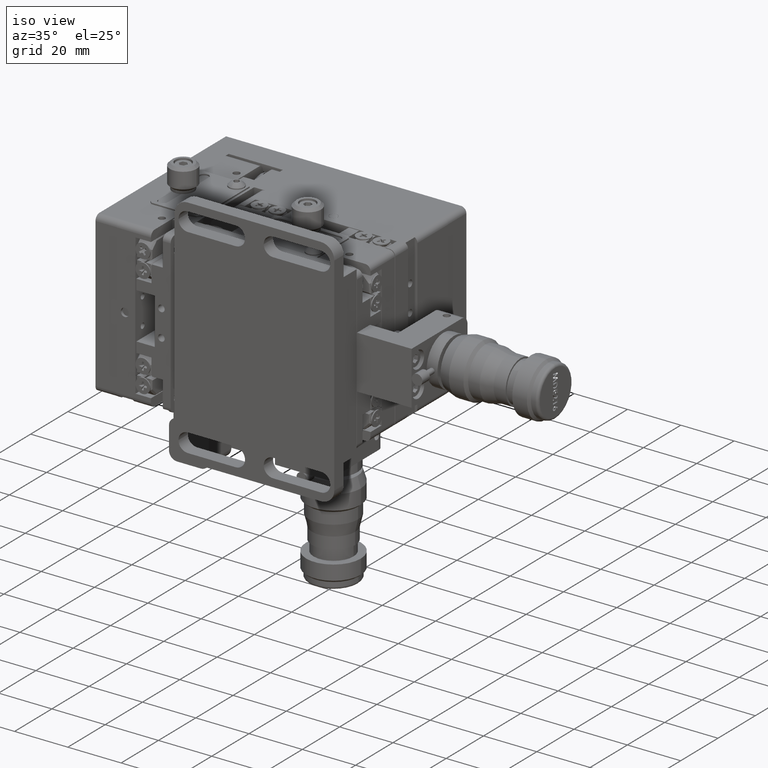
[diagram: clean part render]
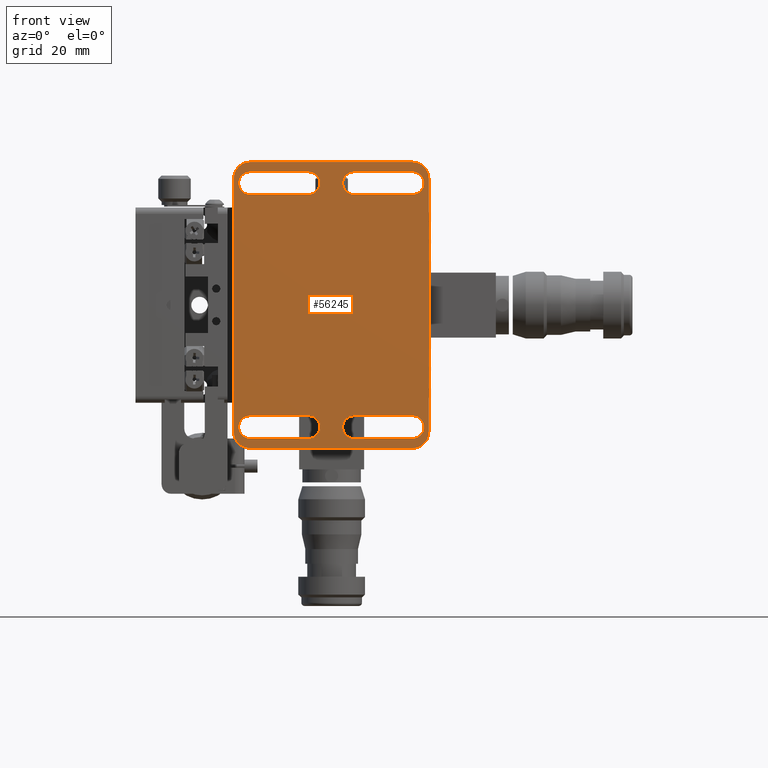
[diagram: tour spotlight — one face highlighted and labeled with its STEP entity id]
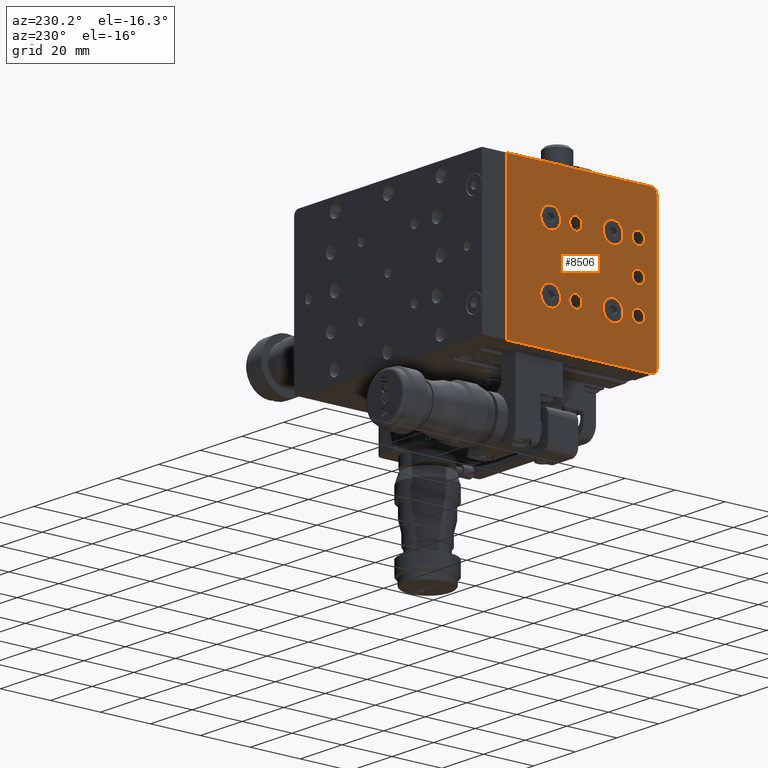
[diagram: tour spotlight — one face highlighted and labeled with its STEP entity id]
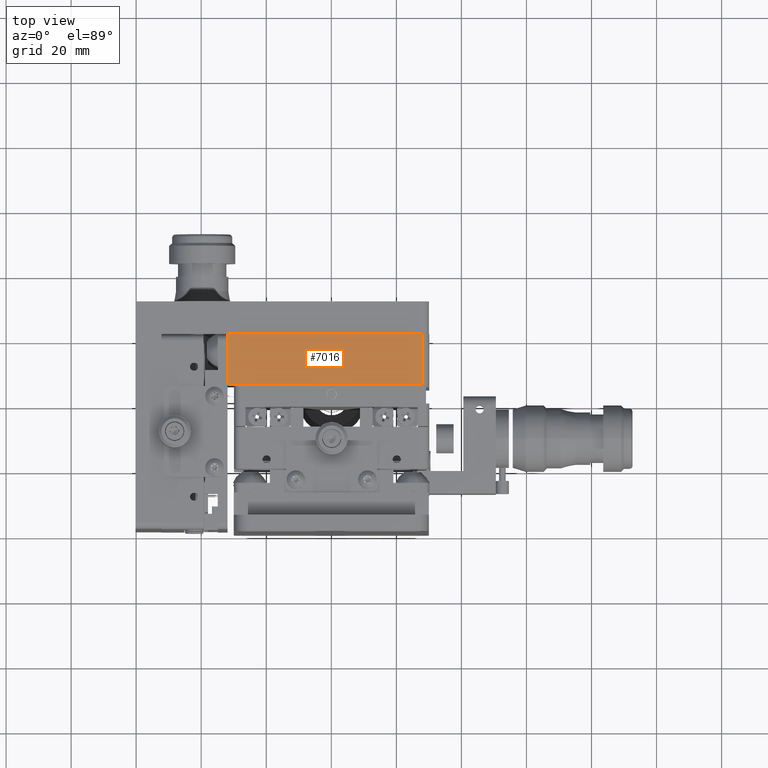
[diagram: tour spotlight — one face highlighted and labeled with its STEP entity id]
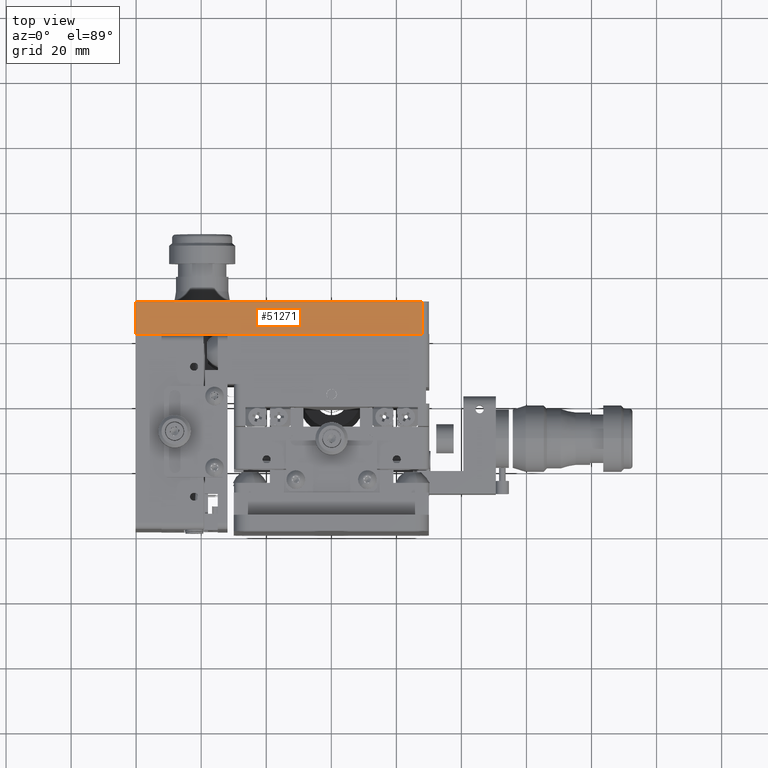
[diagram: tour spotlight — one face highlighted and labeled with its STEP entity id]
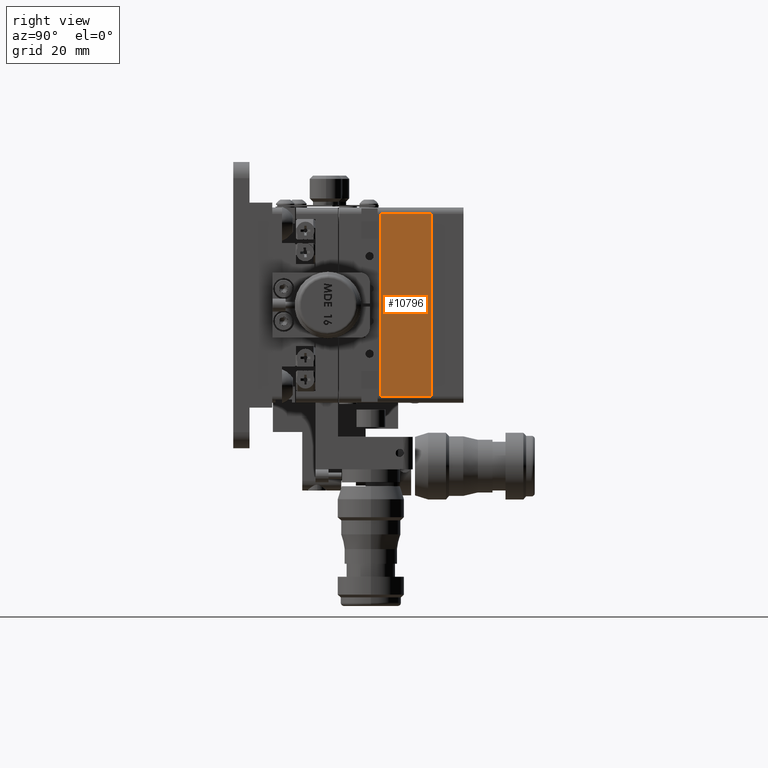
[diagram: tour spotlight — one face highlighted and labeled with its STEP entity id]
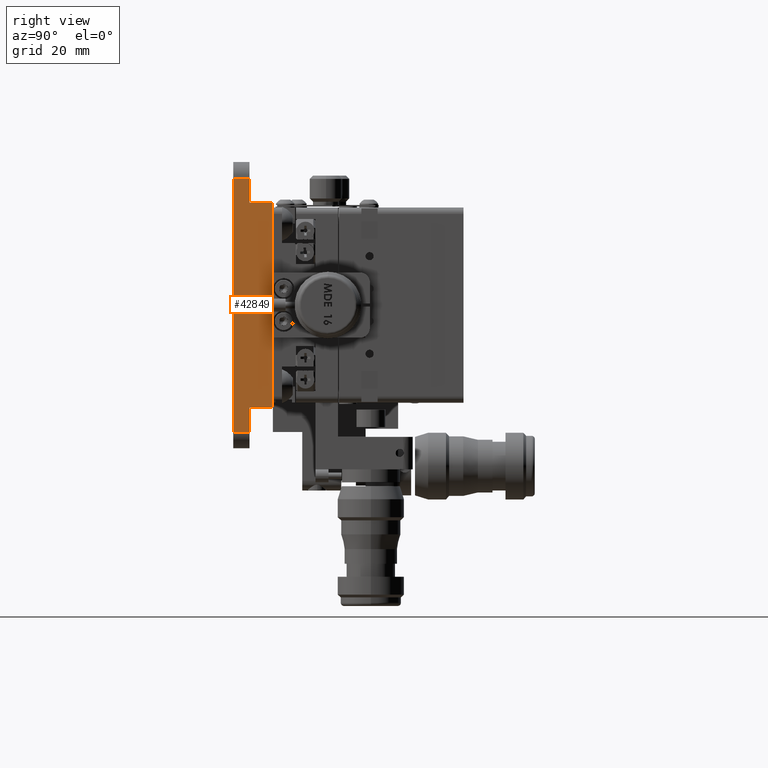
[diagram: tour spotlight — one face highlighted and labeled with its STEP entity id]
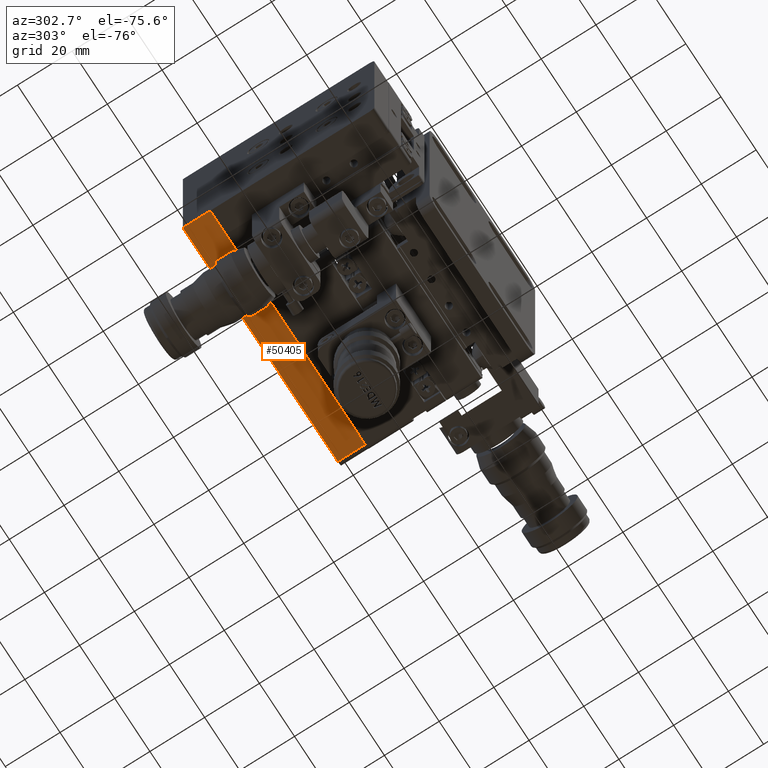
[diagram: tour spotlight — one face highlighted and labeled with its STEP entity id]
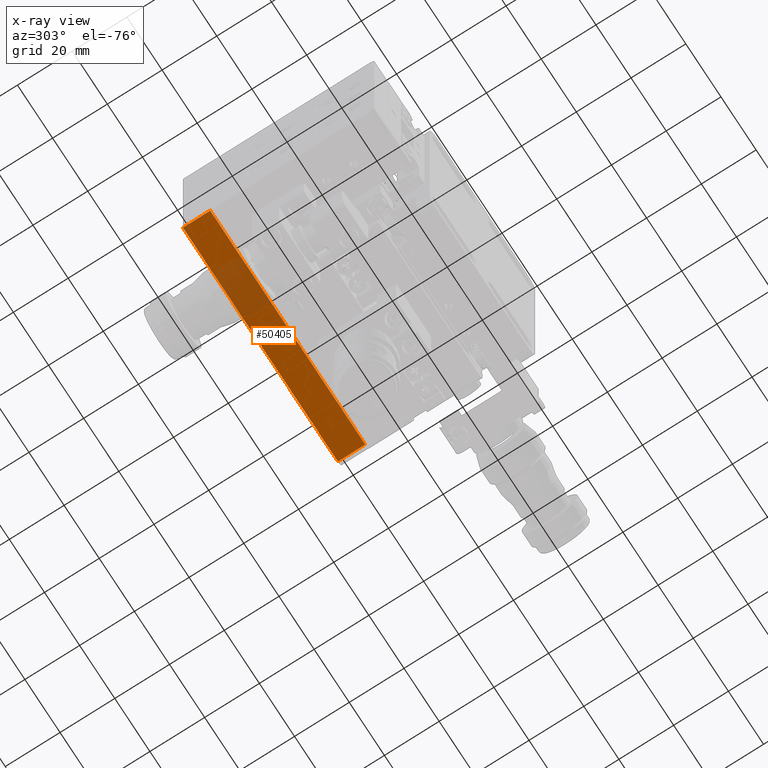
[diagram: x-ray of the same camera — body ghosted, this tour face saturated]
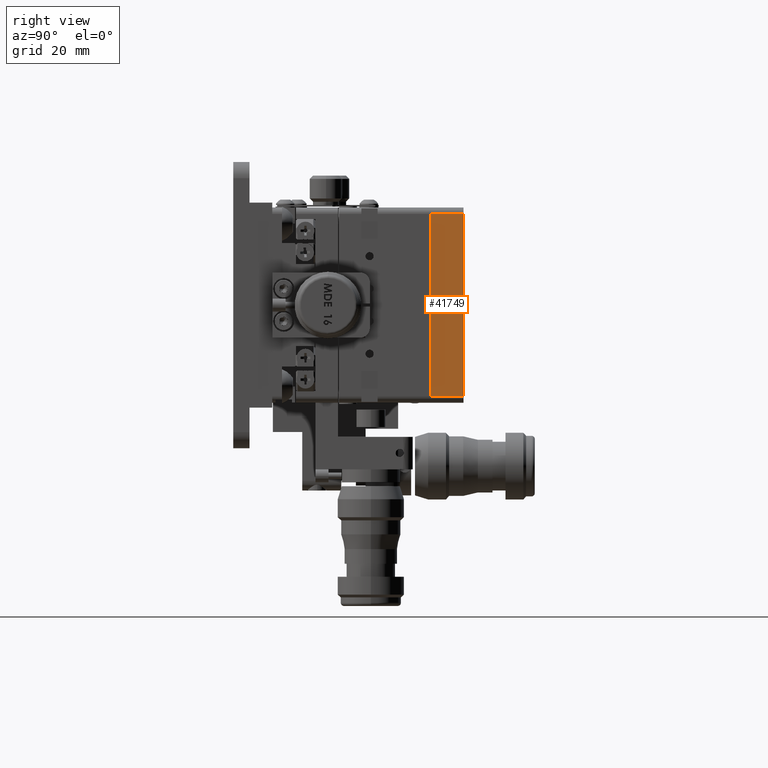
[diagram: tour spotlight — one face highlighted and labeled with its STEP entity id]
A machine part: a face-by-face anatomy tour. The part has 1483 B-rep faces; the first image is the clean iso view, then the 8 largest visible faces are spotlighted one at a time (largest first), each with its STEP entity span.

Face 1 — front view, entity #56245. In plain terms, the highlighted planar face has unit normal (-0, 1, 0).
Definition (entity closure, byte-faithful):
#260 = DIRECTION ( 'NONE',  ( 4.642033319987570600E-017, 1.290122086207278800E-016, -1.000000000000000000 ) ) ;
#334 = VERTEX_POINT ( 'NONE', #36266 ) ;
#431 = EDGE_CURVE ( 'NONE', #4570, #32828, #1223, .T. ) ;
#549 = VECTOR ( 'NONE', #19287, 1000.000000000000000 ) ;
#820 = EDGE_CURVE ( 'NONE', #53070, #52506, #4681, .T. ) ;
#1223 = LINE ( 'NONE', #4876, #42191 ) ;
#1524 = CIRCLE ( 'NONE', #55266, 3.500000000000006700 ) ;
#2002 = DIRECTION ( 'NONE',  ( -1.000000000000000000, -3.447796851343855200E-016, 0.0000000000000000000 ) ) ;
#2199 = DIRECTION ( 'NONE',  ( 1.000000000000000000, 3.447796851343854700E-016, 0.0000000000000000000 ) ) ;
#2329 = DIRECTION ( 'NONE',  ( -1.000000000000000000, -3.447796851343855200E-016, 0.0000000000000000000 ) ) ;
#2708 = VECTOR ( 'NONE', #31696, 1000.000000000000000 ) ;
#2824 = VERTEX_POINT ( 'NONE', #6122 ) ;
#3384 = ORIENTED_EDGE ( 'NONE', *, *, #16386, .F. ) ;
#3616 = DIRECTION ( 'NONE',  ( 2.276337648298599800E-016, 1.000000000000000000, 1.182499646148825700E-016 ) ) ;
#3638 = AXIS2_PLACEMENT_3D ( 'NONE', #41691, #55330, #32823 ) ;
#3888 = VERTEX_POINT ( 'NONE', #55942 ) ;
#4376 = CARTESIAN_POINT ( 'NONE',  ( 25.00000000000002500, 1.300590722146441100E-014, -34.00000000000000700 ) ) ;
#4534 = ORIENTED_EDGE ( 'NONE', *, *, #40019, .T. ) ;
#4570 = VERTEX_POINT ( 'NONE', #25151 ) ;
#4621 = VERTEX_POINT ( 'NONE', #35814 ) ;
#4681 = LINE ( 'NONE', #31777, #32966 ) ;
#4876 = CARTESIAN_POINT ( 'NONE',  ( 25.00000000000002100, 2.942954949047581500E-015, 44.00000000000006400 ) ) ;
#5026 = ORIENTED_EDGE ( 'NONE', *, *, #29342, .T. ) ;
#5028 = CIRCLE ( 'NONE', #16119, 3.500000000000006700 ) ;
#5268 = EDGE_CURVE ( 'NONE', #54407, #334, #26126, .T. ) ;
#5545 = VERTEX_POINT ( 'NONE', #15587 ) ;
#6122 = CARTESIAN_POINT ( 'NONE',  ( 7.000000000000009800, -2.876042757509194900E-015, 41.00000000000003600 ) ) ;
#6241 = VERTEX_POINT ( 'NONE', #45138 ) ;
#6333 = ORIENTED_EDGE ( 'NONE', *, *, #5268, .T. ) ;
#6339 = CARTESIAN_POINT ( 'NONE',  ( 25.00000000000003900, 3.781534305082337900E-015, 37.50000000000005700 ) ) ;
#6367 = AXIS2_PLACEMENT_3D ( 'NONE', #7601, #57366, #11928 ) ;
#6485 = CARTESIAN_POINT ( 'NONE',  ( -25.00000000000003200, -1.300590722146443500E-014, 34.00000000000002100 ) ) ;
#6541 = DIRECTION ( 'NONE',  ( 2.276337648298599800E-016, 1.000000000000000000, 1.182499646148825700E-016 ) ) ;
#6674 = VECTOR ( 'NONE', #50214, 1000.000000000000000 ) ;
#6925 = ORIENTED_EDGE ( 'NONE', *, *, #29393, .T. ) ;
#7577 = CARTESIAN_POINT ( 'NONE',  ( -25.00000000000003900, -1.365096826456801100E-014, 39.00000000000004300 ) ) ;
#7601 = CARTESIAN_POINT ( 'NONE',  ( -25.00000000000003600, -1.345744995163695100E-014, 37.50000000000003600 ) ) ;
#7607 = AXIS2_PLACEMENT_3D ( 'NONE', #18018, #41351, #31662 ) ;
#7727 = AXIS2_PLACEMENT_3D ( 'NONE', #47182, #55859, #47375 ) ;
#7821 = ORIENTED_EDGE ( 'NONE', *, *, #34598, .F. ) ;
#8030 = DIRECTION ( 'NONE',  ( 2.276337648298599800E-016, 1.000000000000000000, 1.182499646148825700E-016 ) ) ;
#8290 = VECTOR ( 'NONE', #26287, 1000.000000000000000 ) ;
#8321 = CARTESIAN_POINT ( 'NONE',  ( -25.00000000000003600, -1.345744995163695100E-014, 37.50000000000003600 ) ) ;
#8461 = CARTESIAN_POINT ( 'NONE',  ( 30.00000000000002800, 1.537486669023998200E-014, -39.00000000000000000 ) ) ;
#8537 = DIRECTION ( 'NONE',  ( 2.276337648298599800E-016, 1.000000000000000000, 1.182499646148825700E-016 ) ) ;
#8664 = EDGE_CURVE ( 'NONE', #14099, #53070, #21910, .T. ) ;
#8752 = DIRECTION ( 'NONE',  ( -1.000000000000000000, -3.447796851343855200E-016, -3.976688766501869300E-016 ) ) ;
#8795 = CARTESIAN_POINT ( 'NONE',  ( 25.00000000000002800, 1.390899268180948200E-014, -41.00000000000001400 ) ) ;
#8843 = CIRCLE ( 'NONE', #54375, 3.500000000000007100 ) ;
#9218 = EDGE_CURVE ( 'NONE', #6241, #54407, #33940, .T. ) ;
#9776 = LINE ( 'NONE', #8795, #2708 ) ;
#10216 = CIRCLE ( 'NONE', #26745, 3.500000000000007100 ) ;
#10726 = CARTESIAN_POINT ( 'NONE',  ( -25.00000000000003600, -4.233077035254875700E-015, -34.00000000000003600 ) ) ;
#10941 = CIRCLE ( 'NONE', #3638, 5.000000000000004400 ) ;
#11005 = CARTESIAN_POINT ( 'NONE',  ( 25.00000000000002100, 3.329991574909799300E-015, 41.00000000000005700 ) ) ;
#11245 = CARTESIAN_POINT ( 'NONE',  ( -7.000000000000009800, -7.251415619218025700E-015, 37.50000000000004300 ) ) ;
#11261 = DIRECTION ( 'NONE',  ( -1.000000000000000000, -3.447796851343855700E-016, 0.0000000000000000000 ) ) ;
#11928 = DIRECTION ( 'NONE',  ( -1.000000000000000000, -3.447796851343858200E-016, 0.0000000000000000000 ) ) ;
#12316 = LINE ( 'NONE', #31268, #6674 ) ;
#13033 = CARTESIAN_POINT ( 'NONE',  ( -25.00000000000003600, -3.781534305082339500E-015, -37.50000000000004300 ) ) ;
#13086 = AXIS2_PLACEMENT_3D ( 'NONE', #21932, #8537, #40135 ) ;
#13107 = VERTEX_POINT ( 'NONE', #53078 ) ;
#13448 = CARTESIAN_POINT ( 'NONE',  ( 25.00000000000003900, 1.300590722146441300E-014, -34.00000000000000700 ) ) ;
#13850 = LINE ( 'NONE', #43290, #37941 ) ;
#13851 = CARTESIAN_POINT ( 'NONE',  ( -7.000000000000008900, -6.799872889045487800E-015, 34.00000000000003600 ) ) ;
#14099 = VERTEX_POINT ( 'NONE', #42307 ) ;
#14818 = LINE ( 'NONE', #30890, #31792 ) ;
#14891 = CARTESIAN_POINT ( 'NONE',  ( 25.00000000000003900, 4.233077035254873400E-015, 34.00000000000005000 ) ) ;
#15495 = VECTOR ( 'NONE', #8752, 1000.000000000000000 ) ;
#15575 = CARTESIAN_POINT ( 'NONE',  ( 25.00000000000002500, 3.588015992151175800E-015, 39.00000000000007100 ) ) ;
#15587 = CARTESIAN_POINT ( 'NONE',  ( 7.000000000000013300, 7.702958349390559500E-015, -41.00000000000003600 ) ) ;
#16012 = CIRCLE ( 'NONE', #33057, 5.000000000000004400 ) ;
#16119 = AXIS2_PLACEMENT_3D ( 'NONE', #13033, #58277, #27249 ) ;
#16233 = VECTOR ( 'NONE', #260, 1000.000000000000000 ) ;
#16386 = EDGE_CURVE ( 'NONE', #28906, #4570, #56482, .T. ) ;
#17860 = DIRECTION ( 'NONE',  ( 1.000000000000000000, 3.447796851343855200E-016, 3.976688766501869300E-016 ) ) ;
#17957 = DIRECTION ( 'NONE',  ( 1.000000000000000000, 3.447796851343854700E-016, 3.976688766501869300E-016 ) ) ;
#18018 = CARTESIAN_POINT ( 'NONE',  ( -7.000000000000006200, 2.424500027336585300E-015, -37.50000000000003600 ) ) ;
#19287 = DIRECTION ( 'NONE',  ( 1.000000000000000000, 3.447796851343854700E-016, 3.976688766501869300E-016 ) ) ;
#19618 = CARTESIAN_POINT ( 'NONE',  ( 25.00000000000002800, 1.390899268180948200E-014, -41.00000000000001400 ) ) ;
#20063 = CARTESIAN_POINT ( 'NONE',  ( 25.00000000000002800, 1.429602930767167100E-014, -44.00000000000000000 ) ) ;
#20854 = DIRECTION ( 'NONE',  ( -1.000000000000000000, -3.447796851343855200E-016, 0.0000000000000000000 ) ) ;
#21287 = CIRCLE ( 'NONE', #7607, 3.500000000000006700 ) ;
#21378 = VERTEX_POINT ( 'NONE', #24200 ) ;
#21759 = ORIENTED_EDGE ( 'NONE', *, *, #49686, .T. ) ;
#21892 = FACE_OUTER_BOUND ( 'NONE', #39327, .T. ) ;
#21898 = CARTESIAN_POINT ( 'NONE',  ( -28.50000000000003900, -2.984816128177834000E-015, -37.50000000000004300 ) ) ;
#21910 = CIRCLE ( 'NONE', #6367, 3.500000000000006700 ) ;
#21932 = CARTESIAN_POINT ( 'NONE',  ( -25.00000000000003600, -3.781534305082339500E-015, -37.50000000000004300 ) ) ;
#22100 = DIRECTION ( 'NONE',  ( -1.000000000000000000, -3.447796851343858200E-016, 0.0000000000000000000 ) ) ;
#22128 = CARTESIAN_POINT ( 'NONE',  ( 3.500000000000010200, 8.048133796122530300E-015, -37.50000000000003600 ) ) ;
#22274 = ORIENTED_EDGE ( 'NONE', *, *, #33621, .T. ) ;
#22355 = ORIENTED_EDGE ( 'NONE', *, *, #25642, .T. ) ;
#22496 = EDGE_LOOP ( 'NONE', ( #5026, #29069, #28239, #6925, #26111 ) ) ;
#23182 = ORIENTED_EDGE ( 'NONE', *, *, #27518, .F. ) ;
#23542 = CIRCLE ( 'NONE', #35044, 5.000000000000008000 ) ;
#24200 = CARTESIAN_POINT ( 'NONE',  ( -25.00000000000002800, -3.329991574909755900E-015, -41.00000000000004300 ) ) ;
#24211 = PLANE ( 'NONE',  #7727 ) ;
#24657 = EDGE_CURVE ( 'NONE', #4621, #28906, #14818, .T. ) ;
#25151 = CARTESIAN_POINT ( 'NONE',  ( -25.00000000000004300, -1.429602930767170200E-014, 44.00000000000004300 ) ) ;
#25271 = VERTEX_POINT ( 'NONE', #6485 ) ;
#25435 = FACE_BOUND ( 'NONE', #22496, .T. ) ;
#25642 = EDGE_CURVE ( 'NONE', #334, #5545, #9776, .T. ) ;
#25757 = CARTESIAN_POINT ( 'NONE',  ( -30.00000000000003900, -1.537486669023999200E-014, 39.00000000000004300 ) ) ;
#25906 = DIRECTION ( 'NONE',  ( -1.000000000000000000, -3.447796851343856700E-016, 0.0000000000000000000 ) ) ;
#26080 = EDGE_CURVE ( 'NONE', #42721, #13107, #54236, .T. ) ;
#26111 = ORIENTED_EDGE ( 'NONE', *, *, #31032, .T. ) ;
#26126 = CIRCLE ( 'NONE', #41037, 3.500000000000006700 ) ;
#26287 = DIRECTION ( 'NONE',  ( -1.000000000000000000, -3.447796851343854700E-016, -3.976688766501869300E-016 ) ) ;
#26338 = EDGE_CURVE ( 'NONE', #3888, #42721, #41510, .T. ) ;
#26391 = EDGE_CURVE ( 'NONE', #32828, #56438, #16012, .T. ) ;
#26745 = AXIS2_PLACEMENT_3D ( 'NONE', #42682, #6541, #2002 ) ;
#26860 = CARTESIAN_POINT ( 'NONE',  ( 25.00000000000002500, 4.233077035254871800E-015, 34.00000000000005000 ) ) ;
#27249 = DIRECTION ( 'NONE',  ( -1.000000000000000000, -3.447796851343855700E-016, 0.0000000000000000000 ) ) ;
#27518 = EDGE_CURVE ( 'NONE', #40558, #58203, #10941, .T. ) ;
#27959 = ORIENTED_EDGE ( 'NONE', *, *, #42442, .T. ) ;
#28239 = ORIENTED_EDGE ( 'NONE', *, *, #26080, .T. ) ;
#28374 = CARTESIAN_POINT ( 'NONE',  ( 3.500000000000006200, -1.627781850432080100E-015, 37.50000000000003600 ) ) ;
#28906 = VERTEX_POINT ( 'NONE', #25757 ) ;
#28978 = CIRCLE ( 'NONE', #33864, 3.500000000000007100 ) ;
#29004 = DIRECTION ( 'NONE',  ( 2.276337648298599800E-016, 1.000000000000000000, 1.182499646148825700E-016 ) ) ;
#29069 = ORIENTED_EDGE ( 'NONE', *, *, #26338, .T. ) ;
#29130 = ORIENTED_EDGE ( 'NONE', *, *, #9218, .T. ) ;
#29308 = DIRECTION ( 'NONE',  ( 2.276337648298599800E-016, 1.000000000000000000, 1.182499646148825700E-016 ) ) ;
#29321 = ORIENTED_EDGE ( 'NONE', *, *, #30656, .T. ) ;
#29342 = EDGE_CURVE ( 'NONE', #2824, #3888, #42924, .T. ) ;
#29393 = EDGE_CURVE ( 'NONE', #13107, #38895, #47199, .T. ) ;
#30656 = EDGE_CURVE ( 'NONE', #5545, #46669, #8843, .T. ) ;
#30859 = CARTESIAN_POINT ( 'NONE',  ( 7.000000000000013300, 7.251415619218024100E-015, -37.50000000000003600 ) ) ;
#30890 = CARTESIAN_POINT ( 'NONE',  ( -30.00000000000003900, -5.311914417823176200E-015, -39.00000000000002100 ) ) ;
#31032 = EDGE_CURVE ( 'NONE', #38895, #2824, #10216, .T. ) ;
#31103 = CARTESIAN_POINT ( 'NONE',  ( 30.00000000000002800, 5.311914417823153300E-015, 39.00000000000007100 ) ) ;
#31268 = CARTESIAN_POINT ( 'NONE',  ( 25.00000000000002500, 1.300590722146441100E-014, -34.00000000000000700 ) ) ;
#31278 = AXIS2_PLACEMENT_3D ( 'NONE', #51658, #29308, #2329 ) ;
#31293 = CARTESIAN_POINT ( 'NONE',  ( -7.000000000000009800, -7.702958349390610000E-015, 41.00000000000004300 ) ) ;
#31431 = VERTEX_POINT ( 'NONE', #10726 ) ;
#31662 = DIRECTION ( 'NONE',  ( -1.000000000000000000, -3.447796851343855200E-016, 0.0000000000000000000 ) ) ;
#31696 = DIRECTION ( 'NONE',  ( -1.000000000000000000, -3.447796851343854700E-016, -3.976688766501869300E-016 ) ) ;
#31777 = CARTESIAN_POINT ( 'NONE',  ( 25.00000000000002100, 3.329991574909799300E-015, 41.00000000000005700 ) ) ;
#31792 = VECTOR ( 'NONE', #35643, 1000.000000000000000 ) ;
#32227 = CARTESIAN_POINT ( 'NONE',  ( 30.00000000000002800, 1.537486669023998200E-014, -39.00000000000000000 ) ) ;
#32705 = AXIS2_PLACEMENT_3D ( 'NONE', #6339, #37959, #11261 ) ;
#32823 = DIRECTION ( 'NONE',  ( -1.000000000000000000, -3.447796851343853300E-016, 0.0000000000000000000 ) ) ;
#32828 = VERTEX_POINT ( 'NONE', #46911 ) ;
#32966 = VECTOR ( 'NONE', #54696, 1000.000000000000000 ) ;
#33057 = AXIS2_PLACEMENT_3D ( 'NONE', #15575, #29004, #2199 ) ;
#33101 = DIRECTION ( 'NONE',  ( -1.000000000000000000, -3.447796851343854700E-016, -3.976688766501869300E-016 ) ) ;
#33201 = ORIENTED_EDGE ( 'NONE', *, *, #431, .F. ) ;
#33565 = ORIENTED_EDGE ( 'NONE', *, *, #26391, .F. ) ;
#33621 = EDGE_CURVE ( 'NONE', #25271, #14099, #1524, .T. ) ;
#33864 = AXIS2_PLACEMENT_3D ( 'NONE', #30859, #44485, #49032 ) ;
#33940 = LINE ( 'NONE', #4376, #36071 ) ;
#34598 = EDGE_CURVE ( 'NONE', #58203, #58070, #34669, .T. ) ;
#34669 = LINE ( 'NONE', #54766, #15495 ) ;
#35044 = AXIS2_PLACEMENT_3D ( 'NONE', #48658, #58293, #35233 ) ;
#35233 = DIRECTION ( 'NONE',  ( -1.000000000000000000, -3.447796851343855700E-016, 0.0000000000000000000 ) ) ;
#35373 = FACE_BOUND ( 'NONE', #37638, .T. ) ;
#35435 = ORIENTED_EDGE ( 'NONE', *, *, #43156, .T. ) ;
#35643 = DIRECTION ( 'NONE',  ( -4.642033319987570600E-017, -1.290122086207278800E-016, 1.000000000000000000 ) ) ;
#35814 = CARTESIAN_POINT ( 'NONE',  ( -30.00000000000003900, -5.311914417823176200E-015, -39.00000000000002100 ) ) ;
#36071 = VECTOR ( 'NONE', #17957, 1000.000000000000000 ) ;
#36103 = VERTEX_POINT ( 'NONE', #13851 ) ;
#36215 = CIRCLE ( 'NONE', #49524, 3.500000000000006700 ) ;
#36266 = CARTESIAN_POINT ( 'NONE',  ( 25.00000000000004300, 1.390899268180948200E-014, -41.00000000000001400 ) ) ;
#36356 = ORIENTED_EDGE ( 'NONE', *, *, #24657, .F. ) ;
#36554 = EDGE_CURVE ( 'NONE', #36103, #25271, #13850, .T. ) ;
#37638 = EDGE_LOOP ( 'NONE', ( #22355, #29321, #51337, #29130, #6333 ) ) ;
#37941 = VECTOR ( 'NONE', #47671, 1000.000000000000000 ) ;
#37959 = DIRECTION ( 'NONE',  ( 2.276337648298599800E-016, 1.000000000000000000, 1.182499646148825700E-016 ) ) ;
#38296 = EDGE_CURVE ( 'NONE', #58070, #4621, #23542, .T. ) ;
#38895 = VERTEX_POINT ( 'NONE', #28374 ) ;
#38988 = CARTESIAN_POINT ( 'NONE',  ( -25.00000000000003900, -1.390899268180948500E-014, 41.00000000000003600 ) ) ;
#39002 = DIRECTION ( 'NONE',  ( 2.276337648298599800E-016, 1.000000000000000000, 1.182499646148825700E-016 ) ) ;
#39327 = EDGE_LOOP ( 'NONE', ( #23182, #39655, #33565, #33201, #3384, #36356, #52975, #7821 ) ) ;
#39655 = ORIENTED_EDGE ( 'NONE', *, *, #40110, .F. ) ;
#40002 = EDGE_CURVE ( 'NONE', #21378, #47120, #54455, .T. ) ;
#40019 = EDGE_CURVE ( 'NONE', #47120, #31431, #5028, .T. ) ;
#40110 = EDGE_CURVE ( 'NONE', #56438, #40558, #55163, .T. ) ;
#40135 = DIRECTION ( 'NONE',  ( -1.000000000000000000, -3.447796851343855700E-016, 0.0000000000000000000 ) ) ;
#40558 = VERTEX_POINT ( 'NONE', #8461 ) ;
#40756 = ORIENTED_EDGE ( 'NONE', *, *, #40002, .T. ) ;
#40868 = EDGE_LOOP ( 'NONE', ( #50745, #27959, #50679, #22274, #52676 ) ) ;
#41037 = AXIS2_PLACEMENT_3D ( 'NONE', #54553, #54761, #50202 ) ;
#41134 = LINE ( 'NONE', #19618, #54549 ) ;
#41194 = CARTESIAN_POINT ( 'NONE',  ( -25.00000000000003600, -2.942954949047640300E-015, -44.00000000000002800 ) ) ;
#41351 = DIRECTION ( 'NONE',  ( 2.276337648298599800E-016, 1.000000000000000000, 1.182499646148825700E-016 ) ) ;
#41510 = CIRCLE ( 'NONE', #32705, 3.500000000000006700 ) ;
#41691 = CARTESIAN_POINT ( 'NONE',  ( 25.00000000000002500, 1.365096826456800300E-014, -39.00000000000000000 ) ) ;
#42191 = VECTOR ( 'NONE', #17860, 1000.000000000000000 ) ;
#42307 = CARTESIAN_POINT ( 'NONE',  ( -28.50000000000003900, -1.266073177473244700E-014, 37.50000000000003600 ) ) ;
#42442 = EDGE_CURVE ( 'NONE', #52506, #36103, #36215, .T. ) ;
#42682 = CARTESIAN_POINT ( 'NONE',  ( 7.000000000000009800, -2.424500027336585300E-015, 37.50000000000003600 ) ) ;
#42721 = VERTEX_POINT ( 'NONE', #14891 ) ;
#42853 = DIRECTION ( 'NONE',  ( 2.276337648298599800E-016, 1.000000000000000000, 1.182499646148825700E-016 ) ) ;
#42924 = LINE ( 'NONE', #11005, #549 ) ;
#43156 = EDGE_CURVE ( 'NONE', #54496, #49632, #21287, .T. ) ;
#43290 = CARTESIAN_POINT ( 'NONE',  ( 25.00000000000002500, 4.233077035254871800E-015, 34.00000000000005000 ) ) ;
#44485 = DIRECTION ( 'NONE',  ( 2.276337648298599800E-016, 1.000000000000000000, 1.182499646148825700E-016 ) ) ;
#45138 = CARTESIAN_POINT ( 'NONE',  ( 7.000000000000012400, 6.799872889045487800E-015, -34.00000000000002800 ) ) ;
#45697 = CARTESIAN_POINT ( 'NONE',  ( -7.000000000000007100, 1.972957297164048300E-015, -34.00000000000002800 ) ) ;
#46669 = VERTEX_POINT ( 'NONE', #22128 ) ;
#46911 = CARTESIAN_POINT ( 'NONE',  ( 25.00000000000002100, 2.942954949047581500E-015, 44.00000000000006400 ) ) ;
#47120 = VERTEX_POINT ( 'NONE', #21898 ) ;
#47182 = CARTESIAN_POINT ( 'NONE',  ( 25.00000000000002500, 1.365096826456800300E-014, -39.00000000000000000 ) ) ;
#47199 = CIRCLE ( 'NONE', #31278, 3.500000000000007100 ) ;
#47375 = DIRECTION ( 'NONE',  ( -1.000000000000000000, -3.447796851343854700E-016, -3.976688766501869300E-016 ) ) ;
#47671 = DIRECTION ( 'NONE',  ( -1.000000000000000000, -3.447796851343854700E-016, -3.976688766501869300E-016 ) ) ;
#48015 = EDGE_LOOP ( 'NONE', ( #21759, #35435, #51263, #40756, #4534 ) ) ;
#48329 = CARTESIAN_POINT ( 'NONE',  ( 7.000000000000013300, 7.251415619218024100E-015, -37.50000000000003600 ) ) ;
#48658 = CARTESIAN_POINT ( 'NONE',  ( -25.00000000000003900, -3.588015992151283800E-015, -39.00000000000002100 ) ) ;
#49032 = DIRECTION ( 'NONE',  ( -1.000000000000000000, -3.447796851343855200E-016, 0.0000000000000000000 ) ) ;
#49524 = AXIS2_PLACEMENT_3D ( 'NONE', #11245, #42853, #56681 ) ;
#49632 = VERTEX_POINT ( 'NONE', #57555 ) ;
#49686 = EDGE_CURVE ( 'NONE', #31431, #54496, #12316, .T. ) ;
#50202 = DIRECTION ( 'NONE',  ( -1.000000000000000000, -3.447796851343853300E-016, 0.0000000000000000000 ) ) ;
#50214 = DIRECTION ( 'NONE',  ( 1.000000000000000000, 3.447796851343854700E-016, 3.976688766501869300E-016 ) ) ;
#50679 = ORIENTED_EDGE ( 'NONE', *, *, #36554, .T. ) ;
#50745 = ORIENTED_EDGE ( 'NONE', *, *, #820, .T. ) ;
#50870 = FACE_BOUND ( 'NONE', #48015, .T. ) ;
#51182 = EDGE_CURVE ( 'NONE', #49632, #21378, #41134, .T. ) ;
#51263 = ORIENTED_EDGE ( 'NONE', *, *, #51182, .T. ) ;
#51337 = ORIENTED_EDGE ( 'NONE', *, *, #55895, .T. ) ;
#51658 = CARTESIAN_POINT ( 'NONE',  ( 7.000000000000009800, -2.424500027336585300E-015, 37.50000000000003600 ) ) ;
#52506 = VERTEX_POINT ( 'NONE', #31293 ) ;
#52676 = ORIENTED_EDGE ( 'NONE', *, *, #8664, .T. ) ;
#52975 = ORIENTED_EDGE ( 'NONE', *, *, #38296, .F. ) ;
#53070 = VERTEX_POINT ( 'NONE', #38988 ) ;
#53078 = CARTESIAN_POINT ( 'NONE',  ( 7.000000000000003600, -1.972957297164048700E-015, 34.00000000000002800 ) ) ;
#53706 = FACE_BOUND ( 'NONE', #40868, .T. ) ;
#54236 = LINE ( 'NONE', #26860, #8290 ) ;
#54375 = AXIS2_PLACEMENT_3D ( 'NONE', #48329, #8030, #20854 ) ;
#54407 = VERTEX_POINT ( 'NONE', #13448 ) ;
#54455 = CIRCLE ( 'NONE', #13086, 3.500000000000006700 ) ;
#54496 = VERTEX_POINT ( 'NONE', #45697 ) ;
#54549 = VECTOR ( 'NONE', #33101, 1000.000000000000000 ) ;
#54553 = CARTESIAN_POINT ( 'NONE',  ( 25.00000000000003900, 1.345744995163694700E-014, -37.50000000000001400 ) ) ;
#54696 = DIRECTION ( 'NONE',  ( 1.000000000000000000, 3.447796851343854700E-016, 3.976688766501869300E-016 ) ) ;
#54761 = DIRECTION ( 'NONE',  ( 2.276337648298599800E-016, 1.000000000000000000, 1.182499646148825700E-016 ) ) ;
#54766 = CARTESIAN_POINT ( 'NONE',  ( 25.00000000000002800, 1.429602930767167100E-014, -44.00000000000000000 ) ) ;
#55163 = LINE ( 'NONE', #32227, #16233 ) ;
#55266 = AXIS2_PLACEMENT_3D ( 'NONE', #8321, #3616, #22100 ) ;
#55330 = DIRECTION ( 'NONE',  ( 2.276337648298599800E-016, 1.000000000000000000, 1.182499646148825700E-016 ) ) ;
#55859 = DIRECTION ( 'NONE',  ( -3.447796851343855200E-016, 1.000000000000000000, 1.182499646148823000E-016 ) ) ;
#55895 = EDGE_CURVE ( 'NONE', #46669, #6241, #28978, .T. ) ;
#55942 = CARTESIAN_POINT ( 'NONE',  ( 25.00000000000003600, 3.329991574909752400E-015, 41.00000000000005700 ) ) ;
#56245 = ADVANCED_FACE ( 'NONE', ( #35373, #25435, #53706, #50870, #21892 ), #24211, .F. ) ;
#56438 = VERTEX_POINT ( 'NONE', #31103 ) ;
#56482 = CIRCLE ( 'NONE', #56954, 5.000000000000004400 ) ;
#56681 = DIRECTION ( 'NONE',  ( -1.000000000000000000, -3.447796851343853300E-016, 0.0000000000000000000 ) ) ;
#56954 = AXIS2_PLACEMENT_3D ( 'NONE', #7577, #39002, #25906 ) ;
#57366 = DIRECTION ( 'NONE',  ( 2.276337648298599800E-016, 1.000000000000000000, 1.182499646148825700E-016 ) ) ;
#57555 = CARTESIAN_POINT ( 'NONE',  ( -7.000000000000006200, 2.876042757509170500E-015, -41.00000000000003600 ) ) ;
#58070 = VERTEX_POINT ( 'NONE', #41194 ) ;
#58203 = VERTEX_POINT ( 'NONE', #20063 ) ;
#58277 = DIRECTION ( 'NONE',  ( 2.276337648298599800E-016, 1.000000000000000000, 1.182499646148825700E-016 ) ) ;
#58293 = DIRECTION ( 'NONE',  ( 2.276337648298599800E-016, 1.000000000000000000, 1.182499646148825700E-016 ) ) ;

Face 2 — auxiliary view, entity #8506. In plain terms, the highlighted planar face has unit normal (-1, 0, -0).
Definition (entity closure, byte-faithful):
#786 = EDGE_CURVE ( 'NONE', #44853, #46166, #39311, .T. ) ;
#1194 = AXIS2_PLACEMENT_3D ( 'NONE', #11280, #15197, #33642 ) ;
#1445 = AXIS2_PLACEMENT_3D ( 'NONE', #46541, #15063, #52024 ) ;
#1509 = FACE_BOUND ( 'NONE', #21607, .T. ) ;
#1598 = CIRCLE ( 'NONE', #52611, 2.500000000000002200 ) ;
#1670 = EDGE_LOOP ( 'NONE', ( #43578, #40687 ) ) ;
#1791 = CARTESIAN_POINT ( 'NONE',  ( -60.20000000000052900, 18.30000000000020300, -8.500000000000341100 ) ) ;
#1834 = VERTEX_POINT ( 'NONE', #44308 ) ;
#1957 = AXIS2_PLACEMENT_3D ( 'NONE', #13573, #36141, #9076 ) ;
#2545 = AXIS2_PLACEMENT_3D ( 'NONE', #27479, #41168, #14060 ) ;
#2591 = EDGE_CURVE ( 'NONE', #13825, #53483, #34890, .T. ) ;
#2693 = CARTESIAN_POINT ( 'NONE',  ( -60.20000000000058500, 8.200000000000192900, 12.49999999999967800 ) ) ;
#3143 = ORIENTED_EDGE ( 'NONE', *, *, #42208, .F. ) ;
#3187 = CIRCLE ( 'NONE', #49429, 2.500000000000002200 ) ;
#3298 = CARTESIAN_POINT ( 'NONE',  ( -60.20000000000051400, 33.20000000000021600, -12.50000000000034500 ) ) ;
#3502 = CIRCLE ( 'NONE', #39554, 2.500000000000002200 ) ;
#3540 = DIRECTION ( 'NONE',  ( -2.775557561562889000E-015, 0.0000000000000000000, 1.000000000000000000 ) ) ;
#3567 = ORIENTED_EDGE ( 'NONE', *, *, #12057, .F. ) ;
#3730 = EDGE_LOOP ( 'NONE', ( #48300, #3567 ) ) ;
#4049 = DIRECTION ( 'NONE',  ( -1.000000000000000000, 4.996003610813204400E-016, -2.125050819047048100E-015 ) ) ;
#4164 = CARTESIAN_POINT ( 'NONE',  ( -60.20000000000047200, 60.80000000000020300, -30.00000000000035900 ) ) ;
#4442 = ORIENTED_EDGE ( 'NONE', *, *, #52029, .F. ) ;
#4559 = DIRECTION ( 'NONE',  ( -1.000000000000000000, 4.996003610813204400E-016, -2.125050819047048100E-015 ) ) ;
#4714 = EDGE_LOOP ( 'NONE', ( #44149, #47036 ) ) ;
#6377 = CIRCLE ( 'NONE', #36767, 4.000000000000003600 ) ;
#6833 = DIRECTION ( 'NONE',  ( -2.775557561562889000E-015, 0.0000000000000000000, 1.000000000000000000 ) ) ;
#6838 = CARTESIAN_POINT ( 'NONE',  ( -60.20000000000057800, 18.30000000000020300, 12.49999999999967800 ) ) ;
#6918 = AXIS2_PLACEMENT_3D ( 'NONE', #8038, #17446, #16879 ) ;
#7411 = DIRECTION ( 'NONE',  ( -1.000000000000000000, 4.996003610813204400E-016, -2.125050819047048100E-015 ) ) ;
#7767 = DIRECTION ( 'NONE',  ( -2.775557561562889000E-015, 0.0000000000000000000, 1.000000000000000000 ) ) ;
#7856 = CARTESIAN_POINT ( 'NONE',  ( -60.20000000000062100, 0.8000000000001894500, 27.99999999999969100 ) ) ;
#8038 = CARTESIAN_POINT ( 'NONE',  ( -60.20000000000050000, 2.800000000000191200, -28.00000000000035900 ) ) ;
#8141 = DIRECTION ( 'NONE',  ( -1.000000000000000000, 4.996003610813204400E-016, -2.125050819047048100E-015 ) ) ;
#8147 = DIRECTION ( 'NONE',  ( -1.000000000000000000, 4.996003610813204400E-016, -2.125050819047048100E-015 ) ) ;
#8285 = CARTESIAN_POINT ( 'NONE',  ( -60.20000000000059300, 60.80000000000020300, 29.99999999999969400 ) ) ;
#8506 = ADVANCED_FACE ( 'NONE', ( #21969, #1509, #9997, #50941, #56648, #34735, #48866, #44609, #36120, #20574, #45308 ), #23572, .T. ) ;
#8831 = VERTEX_POINT ( 'NONE', #26304 ) ;
#8931 = EDGE_LOOP ( 'NONE', ( #29570, #11608 ) ) ;
#9076 = DIRECTION ( 'NONE',  ( -1.734723475976805500E-015, 0.0000000000000000000, 1.000000000000000000 ) ) ;
#9997 = FACE_BOUND ( 'NONE', #34341, .T. ) ;
#10155 = CARTESIAN_POINT ( 'NONE',  ( -60.20000000000053600, 33.20000000000021600, -2.500000000000335300 ) ) ;
#11100 = ORIENTED_EDGE ( 'NONE', *, *, #49522, .F. ) ;
#11280 = CARTESIAN_POINT ( 'NONE',  ( -60.20000000000057800, 18.30000000000020300, 12.49999999999967800 ) ) ;
#11382 = EDGE_CURVE ( 'NONE', #37593, #8831, #54890, .T. ) ;
#11588 = LINE ( 'NONE', #4164, #46243 ) ;
#11608 = ORIENTED_EDGE ( 'NONE', *, *, #13120, .F. ) ;
#11643 = CIRCLE ( 'NONE', #46448, 4.000000000000003600 ) ;
#11743 = DIRECTION ( 'NONE',  ( -1.000000000000000000, 4.996003610813204400E-016, -2.125050819047048100E-015 ) ) ;
#12057 = EDGE_CURVE ( 'NONE', #16430, #55667, #15225, .T. ) ;
#12201 = DIRECTION ( 'NONE',  ( -1.000000000000000000, 4.996003610813204400E-016, -2.125050819047048100E-015 ) ) ;
#12599 = CARTESIAN_POINT ( 'NONE',  ( -60.20000000000049300, 2.800000000000191200, -30.00000000000035900 ) ) ;
#12839 = LINE ( 'NONE', #46135, #15668 ) ;
#12873 = ORIENTED_EDGE ( 'NONE', *, *, #23027, .T. ) ;
#13120 = EDGE_CURVE ( 'NONE', #53201, #39650, #16599, .T. ) ;
#13185 = DIRECTION ( 'NONE',  ( -4.996003610813204400E-016, -1.000000000000000000, 1.067714582722729600E-016 ) ) ;
#13396 = DIRECTION ( 'NONE',  ( -2.775557561562889000E-015, 0.0000000000000000000, 1.000000000000000000 ) ) ;
#13573 = CARTESIAN_POINT ( 'NONE',  ( -60.20000000000056400, 43.30000000000021000, 12.49999999999962300 ) ) ;
#13696 = VECTOR ( 'NONE', #46995, 1000.000000000000000 ) ;
#13825 = VERTEX_POINT ( 'NONE', #58555 ) ;
#14060 = DIRECTION ( 'NONE',  ( -2.775557561562889000E-015, 0.0000000000000000000, 1.000000000000000000 ) ) ;
#14882 = DIRECTION ( 'NONE',  ( -1.000000000000000000, 4.996003610813204400E-016, -2.125050819047048100E-015 ) ) ;
#14923 = CARTESIAN_POINT ( 'NONE',  ( -60.20000000000059300, 60.80000000000020300, 29.99999999999969400 ) ) ;
#15063 = DIRECTION ( 'NONE',  ( -1.000000000000000000, 4.996003610813204400E-016, -2.125050819047048100E-015 ) ) ;
#15197 = DIRECTION ( 'NONE',  ( -1.000000000000000000, 4.996003610813204400E-016, -2.125050819047048100E-015 ) ) ;
#15225 = CIRCLE ( 'NONE', #1957, 4.000000000000003600 ) ;
#15589 = EDGE_CURVE ( 'NONE', #41710, #56599, #27565, .T. ) ;
#15668 = VECTOR ( 'NONE', #50250, 1000.000000000000000 ) ;
#15705 = DIRECTION ( 'NONE',  ( -2.775557561562889000E-015, 0.0000000000000000000, 1.000000000000000000 ) ) ;
#16052 = AXIS2_PLACEMENT_3D ( 'NONE', #30393, #12201, #39853 ) ;
#16143 = VERTEX_POINT ( 'NONE', #22973 ) ;
#16430 = VERTEX_POINT ( 'NONE', #30270 ) ;
#16591 = CARTESIAN_POINT ( 'NONE',  ( -60.20000000000058500, 8.200000000000192900, 12.49999999999967800 ) ) ;
#16599 = CIRCLE ( 'NONE', #58314, 2.500000000000002200 ) ;
#16798 = AXIS2_PLACEMENT_3D ( 'NONE', #27662, #49805, #31844 ) ;
#16879 = DIRECTION ( 'NONE',  ( -3.469446951953611000E-015, 0.0000000000000000000, 1.000000000000000000 ) ) ;
#17120 = CARTESIAN_POINT ( 'NONE',  ( -60.20000000000055700, 8.200000000000221300, -3.330669073875469600E-013 ) ) ;
#17168 = DIRECTION ( 'NONE',  ( -2.775557561562889000E-015, 0.0000000000000000000, 1.000000000000000000 ) ) ;
#17275 = ORIENTED_EDGE ( 'NONE', *, *, #53514, .F. ) ;
#17276 = DIRECTION ( 'NONE',  ( -1.000000000000000000, 4.996003610813204400E-016, -2.125050819047048100E-015 ) ) ;
#17441 = VERTEX_POINT ( 'NONE', #7856 ) ;
#17446 = DIRECTION ( 'NONE',  ( -1.000000000000000000, 4.996003610813204400E-016, -2.125050819047048100E-015 ) ) ;
#18672 = ORIENTED_EDGE ( 'NONE', *, *, #15589, .F. ) ;
#18949 = CARTESIAN_POINT ( 'NONE',  ( -60.20000000000047200, 60.80000000000020300, -30.00000000000035900 ) ) ;
#19097 = VERTEX_POINT ( 'NONE', #30727 ) ;
#19301 = DIRECTION ( 'NONE',  ( -1.734723475976805500E-015, 0.0000000000000000000, 1.000000000000000000 ) ) ;
#20005 = ORIENTED_EDGE ( 'NONE', *, *, #46086, .F. ) ;
#20009 = EDGE_LOOP ( 'NONE', ( #20005, #50286 ) ) ;
#20033 = DIRECTION ( 'NONE',  ( -1.734723475976805500E-015, 0.0000000000000000000, 1.000000000000000000 ) ) ;
#20574 = FACE_BOUND ( 'NONE', #3730, .T. ) ;
#20733 = ORIENTED_EDGE ( 'NONE', *, *, #35866, .T. ) ;
#21607 = EDGE_LOOP ( 'NONE', ( #11100, #17275 ) ) ;
#21969 = FACE_BOUND ( 'NONE', #42270, .T. ) ;
#22309 = CARTESIAN_POINT ( 'NONE',  ( -60.20000000000057800, 8.200000000000191100, 9.999999999999676700 ) ) ;
#22973 = CARTESIAN_POINT ( 'NONE',  ( -60.20000000000050000, 0.8000000000001894500, -28.00000000000035900 ) ) ;
#23027 = EDGE_CURVE ( 'NONE', #53483, #43673, #12839, .T. ) ;
#23572 = PLANE ( 'NONE',  #1445 ) ;
#23927 = CARTESIAN_POINT ( 'NONE',  ( -60.20000000000056400, 8.200000000000221300, 2.499999999999669200 ) ) ;
#24604 = EDGE_CURVE ( 'NONE', #8831, #37593, #6377, .T. ) ;
#24836 = VERTEX_POINT ( 'NONE', #23927 ) ;
#25544 = EDGE_CURVE ( 'NONE', #55969, #16143, #50717, .T. ) ;
#25547 = CARTESIAN_POINT ( 'NONE',  ( -60.20000000000057100, 18.30000000000020300, 8.499999999999674900 ) ) ;
#25661 = CIRCLE ( 'NONE', #16798, 4.000000000000003600 ) ;
#26304 = CARTESIAN_POINT ( 'NONE',  ( -60.20000000000051400, 43.30000000000021000, -8.500000000000341100 ) ) ;
#26570 = ORIENTED_EDGE ( 'NONE', *, *, #2591, .T. ) ;
#26643 = DIRECTION ( 'NONE',  ( -1.000000000000000000, 4.996003610813204400E-016, -2.125050819047048100E-015 ) ) ;
#27176 = DIRECTION ( 'NONE',  ( -1.000000000000000000, 4.996003610813204400E-016, -2.125050819047048100E-015 ) ) ;
#27479 = CARTESIAN_POINT ( 'NONE',  ( -60.20000000000057100, 33.20000000000018800, 12.49999999999967800 ) ) ;
#27565 = CIRCLE ( 'NONE', #53473, 2.500000000000002200 ) ;
#27662 = CARTESIAN_POINT ( 'NONE',  ( -60.20000000000056400, 43.30000000000021000, 12.49999999999962300 ) ) ;
#28447 = VERTEX_POINT ( 'NONE', #43245 ) ;
#28667 = CARTESIAN_POINT ( 'NONE',  ( -60.20000000000059300, 8.200000000000192900, 14.99999999999968000 ) ) ;
#28777 = AXIS2_PLACEMENT_3D ( 'NONE', #17120, #34599, #39140 ) ;
#29570 = ORIENTED_EDGE ( 'NONE', *, *, #56888, .F. ) ;
#29874 = CARTESIAN_POINT ( 'NONE',  ( -60.20000000000057100, 43.30000000000021000, 16.49999999999962700 ) ) ;
#30270 = CARTESIAN_POINT ( 'NONE',  ( -60.20000000000055700, 43.30000000000021000, 8.499999999999619900 ) ) ;
#30393 = CARTESIAN_POINT ( 'NONE',  ( -60.20000000000062100, 2.800000000000191200, 27.99999999999969100 ) ) ;
#30516 = CARTESIAN_POINT ( 'NONE',  ( -60.20000000000053600, 8.200000000000221300, -10.00000000000034100 ) ) ;
#30727 = CARTESIAN_POINT ( 'NONE',  ( -60.20000000000056400, 33.20000000000018800, 9.999999999999676700 ) ) ;
#31039 = EDGE_LOOP ( 'NONE', ( #45504, #57182 ) ) ;
#31277 = CARTESIAN_POINT ( 'NONE',  ( -60.20000000000050700, 43.30000000000021000, -12.50000000000034500 ) ) ;
#31421 = CARTESIAN_POINT ( 'NONE',  ( -60.20000000000057100, 33.20000000000018800, 12.49999999999967800 ) ) ;
#31439 = VERTEX_POINT ( 'NONE', #28667 ) ;
#31563 = CIRCLE ( 'NONE', #2545, 2.500000000000002200 ) ;
#31844 = DIRECTION ( 'NONE',  ( -1.734723475976805500E-015, 0.0000000000000000000, 1.000000000000000000 ) ) ;
#33004 = CIRCLE ( 'NONE', #47848, 2.500000000000002200 ) ;
#33236 = CIRCLE ( 'NONE', #28777, 2.500000000000002200 ) ;
#33274 = CARTESIAN_POINT ( 'NONE',  ( -60.20000000000055000, 33.20000000000021600, 2.499999999999669200 ) ) ;
#33642 = DIRECTION ( 'NONE',  ( -1.734723475976805500E-015, 0.0000000000000000000, 1.000000000000000000 ) ) ;
#34341 = EDGE_LOOP ( 'NONE', ( #3143, #54883 ) ) ;
#34498 = CARTESIAN_POINT ( 'NONE',  ( -60.20000000000049300, 0.8000000000001894500, -30.00000000000035900 ) ) ;
#34599 = DIRECTION ( 'NONE',  ( -1.000000000000000000, 4.996003610813204400E-016, -2.125050819047048100E-015 ) ) ;
#34735 = FACE_BOUND ( 'NONE', #55642, .T. ) ;
#34779 = CIRCLE ( 'NONE', #36597, 2.500000000000002200 ) ;
#34839 = DIRECTION ( 'NONE',  ( -1.000000000000000000, 4.996003610813204400E-016, -2.125050819047048100E-015 ) ) ;
#34844 = EDGE_CURVE ( 'NONE', #38195, #1834, #41278, .T. ) ;
#34890 = LINE ( 'NONE', #14923, #13696 ) ;
#35595 = AXIS2_PLACEMENT_3D ( 'NONE', #50758, #54227, #19301 ) ;
#35866 = EDGE_CURVE ( 'NONE', #16143, #17441, #56411, .T. ) ;
#35997 = CIRCLE ( 'NONE', #37676, 4.000000000000003600 ) ;
#36120 = FACE_BOUND ( 'NONE', #4714, .T. ) ;
#36141 = DIRECTION ( 'NONE',  ( -1.000000000000000000, 4.996003610813204400E-016, -2.125050819047048100E-015 ) ) ;
#36379 = CARTESIAN_POINT ( 'NONE',  ( -60.20000000000051400, 18.30000000000020300, -16.50000000000034800 ) ) ;
#36543 = CARTESIAN_POINT ( 'NONE',  ( -60.20000000000052200, 18.30000000000020300, -12.50000000000034500 ) ) ;
#36597 = AXIS2_PLACEMENT_3D ( 'NONE', #3298, #57764, #57943 ) ;
#36767 = AXIS2_PLACEMENT_3D ( 'NONE', #31277, #4049, #40562 ) ;
#37161 = AXIS2_PLACEMENT_3D ( 'NONE', #16591, #8141, #17168 ) ;
#37593 = VERTEX_POINT ( 'NONE', #42445 ) ;
#37676 = AXIS2_PLACEMENT_3D ( 'NONE', #39744, #8147, #44851 ) ;
#38195 = VERTEX_POINT ( 'NONE', #25547 ) ;
#38327 = ORIENTED_EDGE ( 'NONE', *, *, #52923, .F. ) ;
#39140 = DIRECTION ( 'NONE',  ( -2.775557561562889000E-015, 0.0000000000000000000, 1.000000000000000000 ) ) ;
#39311 = CIRCLE ( 'NONE', #49154, 4.000000000000003600 ) ;
#39554 = AXIS2_PLACEMENT_3D ( 'NONE', #47885, #34839, #7767 ) ;
#39579 = EDGE_CURVE ( 'NONE', #52408, #46510, #34779, .T. ) ;
#39650 = VERTEX_POINT ( 'NONE', #30516 ) ;
#39722 = ORIENTED_EDGE ( 'NONE', *, *, #57358, .T. ) ;
#39744 = CARTESIAN_POINT ( 'NONE',  ( -60.20000000000052200, 18.30000000000020300, -12.50000000000034500 ) ) ;
#39853 = DIRECTION ( 'NONE',  ( -3.469446951953611000E-015, 0.0000000000000000000, 1.000000000000000000 ) ) ;
#40108 = VERTEX_POINT ( 'NONE', #22309 ) ;
#40503 = CARTESIAN_POINT ( 'NONE',  ( -60.20000000000051400, 33.20000000000021600, -12.50000000000034500 ) ) ;
#40562 = DIRECTION ( 'NONE',  ( -1.734723475976805500E-015, 0.0000000000000000000, 1.000000000000000000 ) ) ;
#40687 = ORIENTED_EDGE ( 'NONE', *, *, #56967, .F. ) ;
#41168 = DIRECTION ( 'NONE',  ( -1.000000000000000000, 4.996003610813204400E-016, -2.125050819047048100E-015 ) ) ;
#41278 = CIRCLE ( 'NONE', #1194, 4.000000000000003600 ) ;
#41710 = VERTEX_POINT ( 'NONE', #33274 ) ;
#42208 = EDGE_CURVE ( 'NONE', #46510, #52408, #58119, .T. ) ;
#42270 = EDGE_LOOP ( 'NONE', ( #18672, #4442 ) ) ;
#42445 = CARTESIAN_POINT ( 'NONE',  ( -60.20000000000050000, 43.30000000000021000, -16.50000000000034800 ) ) ;
#42518 = ORIENTED_EDGE ( 'NONE', *, *, #25544, .T. ) ;
#42574 = CARTESIAN_POINT ( 'NONE',  ( -60.20000000000052200, 33.20000000000021600, -10.00000000000034100 ) ) ;
#42784 = DIRECTION ( 'NONE',  ( -2.125050819047048100E-015, 1.067714582722746300E-016, 1.000000000000000000 ) ) ;
#42971 = DIRECTION ( 'NONE',  ( -2.775557561562889000E-015, 0.0000000000000000000, 1.000000000000000000 ) ) ;
#43135 = CIRCLE ( 'NONE', #37161, 2.500000000000002200 ) ;
#43245 = CARTESIAN_POINT ( 'NONE',  ( -60.20000000000057800, 33.20000000000018800, 14.99999999999968000 ) ) ;
#43578 = ORIENTED_EDGE ( 'NONE', *, *, #786, .F. ) ;
#43673 = VERTEX_POINT ( 'NONE', #18949 ) ;
#43997 = CARTESIAN_POINT ( 'NONE',  ( -60.20000000000052900, 8.200000000000221300, -12.50000000000034500 ) ) ;
#44149 = ORIENTED_EDGE ( 'NONE', *, *, #49413, .F. ) ;
#44291 = DIRECTION ( 'NONE',  ( -1.000000000000000000, 4.996003610813204400E-016, -2.125050819047048100E-015 ) ) ;
#44308 = CARTESIAN_POINT ( 'NONE',  ( -60.20000000000058500, 18.30000000000020300, 16.49999999999968000 ) ) ;
#44609 = FACE_BOUND ( 'NONE', #1670, .T. ) ;
#44851 = DIRECTION ( 'NONE',  ( -1.734723475976805500E-015, 0.0000000000000000000, 1.000000000000000000 ) ) ;
#44853 = VERTEX_POINT ( 'NONE', #1791 ) ;
#45193 = DIRECTION ( 'NONE',  ( -2.775557561562889000E-015, 0.0000000000000000000, 1.000000000000000000 ) ) ;
#45308 = FACE_OUTER_BOUND ( 'NONE', #52677, .T. ) ;
#45504 = ORIENTED_EDGE ( 'NONE', *, *, #24604, .F. ) ;
#46086 = EDGE_CURVE ( 'NONE', #28447, #19097, #33004, .T. ) ;
#46135 = CARTESIAN_POINT ( 'NONE',  ( -60.20000000000047200, 60.80000000000020300, -30.00000000000035900 ) ) ;
#46166 = VERTEX_POINT ( 'NONE', #36379 ) ;
#46243 = VECTOR ( 'NONE', #13185, 1000.000000000000000 ) ;
#46372 = DIRECTION ( 'NONE',  ( -1.000000000000000000, 4.996003610813204400E-016, -2.125050819047048100E-015 ) ) ;
#46448 = AXIS2_PLACEMENT_3D ( 'NONE', #6838, #14882, #20033 ) ;
#46510 = VERTEX_POINT ( 'NONE', #42574 ) ;
#46541 = CARTESIAN_POINT ( 'NONE',  ( -60.20000000000049300, 0.8000000000001894500, -30.00000000000035900 ) ) ;
#46995 = DIRECTION ( 'NONE',  ( 4.996003610813204400E-016, 1.000000000000000000, -1.067714582722729600E-016 ) ) ;
#47036 = ORIENTED_EDGE ( 'NONE', *, *, #34844, .F. ) ;
#47848 = AXIS2_PLACEMENT_3D ( 'NONE', #31421, #44291, #58278 ) ;
#47854 = EDGE_CURVE ( 'NONE', #31439, #40108, #56061, .T. ) ;
#47885 = CARTESIAN_POINT ( 'NONE',  ( -60.20000000000052900, 8.200000000000221300, -12.50000000000034500 ) ) ;
#48167 = EDGE_CURVE ( 'NONE', #55667, #16430, #25661, .T. ) ;
#48300 = ORIENTED_EDGE ( 'NONE', *, *, #48167, .F. ) ;
#48866 = FACE_BOUND ( 'NONE', #31039, .T. ) ;
#49154 = AXIS2_PLACEMENT_3D ( 'NONE', #36543, #4559, #49745 ) ;
#49413 = EDGE_CURVE ( 'NONE', #1834, #38195, #11643, .T. ) ;
#49429 = AXIS2_PLACEMENT_3D ( 'NONE', #52230, #7411, #42971 ) ;
#49522 = EDGE_CURVE ( 'NONE', #24836, #55370, #3187, .T. ) ;
#49745 = DIRECTION ( 'NONE',  ( -1.734723475976805500E-015, 0.0000000000000000000, 1.000000000000000000 ) ) ;
#49805 = DIRECTION ( 'NONE',  ( -1.000000000000000000, 4.996003610813204400E-016, -2.125050819047048100E-015 ) ) ;
#50250 = DIRECTION ( 'NONE',  ( 2.125050819047048100E-015, -1.067714582722746300E-016, -1.000000000000000000 ) ) ;
#50272 = EDGE_CURVE ( 'NONE', #43673, #55969, #11588, .T. ) ;
#50286 = ORIENTED_EDGE ( 'NONE', *, *, #58349, .F. ) ;
#50478 = CARTESIAN_POINT ( 'NONE',  ( -60.20000000000054300, 33.20000000000021600, -3.330669073875469600E-013 ) ) ;
#50717 = CIRCLE ( 'NONE', #6918, 2.000000000000001800 ) ;
#50758 = CARTESIAN_POINT ( 'NONE',  ( -60.20000000000050700, 43.30000000000021000, -12.50000000000034500 ) ) ;
#50941 = FACE_BOUND ( 'NONE', #20009, .T. ) ;
#52024 = DIRECTION ( 'NONE',  ( -2.125050819047048100E-015, 1.067714582722746300E-016, 1.000000000000000000 ) ) ;
#52029 = EDGE_CURVE ( 'NONE', #56599, #41710, #1598, .T. ) ;
#52230 = CARTESIAN_POINT ( 'NONE',  ( -60.20000000000055700, 8.200000000000221300, -3.330669073875469600E-013 ) ) ;
#52408 = VERTEX_POINT ( 'NONE', #57579 ) ;
#52611 = AXIS2_PLACEMENT_3D ( 'NONE', #54665, #27176, #45193 ) ;
#52677 = EDGE_LOOP ( 'NONE', ( #53370, #42518, #20733, #39722, #26570, #12873 ) ) ;
#52923 = EDGE_CURVE ( 'NONE', #40108, #31439, #43135, .T. ) ;
#53201 = VERTEX_POINT ( 'NONE', #53724 ) ;
#53340 = AXIS2_PLACEMENT_3D ( 'NONE', #40503, #26643, #13396 ) ;
#53370 = ORIENTED_EDGE ( 'NONE', *, *, #50272, .T. ) ;
#53473 = AXIS2_PLACEMENT_3D ( 'NONE', #50478, #46372, #15705 ) ;
#53483 = VERTEX_POINT ( 'NONE', #8285 ) ;
#53514 = EDGE_CURVE ( 'NONE', #55370, #24836, #33236, .T. ) ;
#53597 = CIRCLE ( 'NONE', #16052, 2.000000000000001800 ) ;
#53724 = CARTESIAN_POINT ( 'NONE',  ( -60.20000000000052200, 8.200000000000219600, -15.00000000000034600 ) ) ;
#54227 = DIRECTION ( 'NONE',  ( -1.000000000000000000, 4.996003610813204400E-016, -2.125050819047048100E-015 ) ) ;
#54665 = CARTESIAN_POINT ( 'NONE',  ( -60.20000000000054300, 33.20000000000021600, -3.330669073875469600E-013 ) ) ;
#54883 = ORIENTED_EDGE ( 'NONE', *, *, #39579, .F. ) ;
#54890 = CIRCLE ( 'NONE', #35595, 4.000000000000003600 ) ;
#55370 = VERTEX_POINT ( 'NONE', #57024 ) ;
#55642 = EDGE_LOOP ( 'NONE', ( #56330, #38327 ) ) ;
#55667 = VERTEX_POINT ( 'NONE', #29874 ) ;
#55969 = VERTEX_POINT ( 'NONE', #12599 ) ;
#56061 = CIRCLE ( 'NONE', #57335, 2.500000000000002200 ) ;
#56330 = ORIENTED_EDGE ( 'NONE', *, *, #47854, .F. ) ;
#56411 = LINE ( 'NONE', #34498, #57079 ) ;
#56599 = VERTEX_POINT ( 'NONE', #10155 ) ;
#56648 = FACE_BOUND ( 'NONE', #8931, .T. ) ;
#56888 = EDGE_CURVE ( 'NONE', #39650, #53201, #3502, .T. ) ;
#56967 = EDGE_CURVE ( 'NONE', #46166, #44853, #35997, .T. ) ;
#57024 = CARTESIAN_POINT ( 'NONE',  ( -60.20000000000055000, 8.200000000000219600, -2.500000000000335300 ) ) ;
#57079 = VECTOR ( 'NONE', #42784, 1000.000000000000000 ) ;
#57182 = ORIENTED_EDGE ( 'NONE', *, *, #11382, .F. ) ;
#57335 = AXIS2_PLACEMENT_3D ( 'NONE', #2693, #11743, #6833 ) ;
#57358 = EDGE_CURVE ( 'NONE', #17441, #13825, #53597, .T. ) ;
#57579 = CARTESIAN_POINT ( 'NONE',  ( -60.20000000000050700, 33.20000000000021600, -15.00000000000034600 ) ) ;
#57764 = DIRECTION ( 'NONE',  ( -1.000000000000000000, 4.996003610813204400E-016, -2.125050819047048100E-015 ) ) ;
#57943 = DIRECTION ( 'NONE',  ( -2.775557561562889000E-015, 0.0000000000000000000, 1.000000000000000000 ) ) ;
#58119 = CIRCLE ( 'NONE', #53340, 2.500000000000002200 ) ;
#58278 = DIRECTION ( 'NONE',  ( -2.775557561562889000E-015, 0.0000000000000000000, 1.000000000000000000 ) ) ;
#58314 = AXIS2_PLACEMENT_3D ( 'NONE', #43997, #17276, #3540 ) ;
#58349 = EDGE_CURVE ( 'NONE', #19097, #28447, #31563, .T. ) ;
#58555 = CARTESIAN_POINT ( 'NONE',  ( -60.20000000000062100, 2.800000000000191200, 29.99999999999969400 ) ) ;

Face 3 — top view, entity #7016. In plain terms, the highlighted planar face has unit normal (0, 0, -1).
Definition (entity closure, byte-faithful):
#2012 = CARTESIAN_POINT ( 'NONE',  ( -31.90000000000056700, 60.80000000000004000, 30.00000000000017100 ) ) ;
#7016 = ADVANCED_FACE ( 'NONE', ( #21687 ), #44242, .F. ) ;
#11970 = AXIS2_PLACEMENT_3D ( 'NONE', #12244, #43872, #16762 ) ;
#12244 = CARTESIAN_POINT ( 'NONE',  ( -29.90000000000054600, 60.80000000000004000, 30.00000000000017100 ) ) ;
#14309 = EDGE_CURVE ( 'NONE', #32098, #36499, #57434, .T. ) ;
#14334 = CARTESIAN_POINT ( 'NONE',  ( -31.90000000000056700, 45.40000000000003400, 30.00000000000015600 ) ) ;
#16272 = DIRECTION ( 'NONE',  ( -6.938893903907228400E-017, 1.000000000000000000, 7.216449660063516500E-016 ) ) ;
#16426 = ORIENTED_EDGE ( 'NONE', *, *, #37911, .F. ) ;
#16762 = DIRECTION ( 'NONE',  ( -6.938893903907228400E-017, 1.000000000000000000, 7.216449660063516500E-016 ) ) ;
#17432 = ORIENTED_EDGE ( 'NONE', *, *, #22883, .T. ) ;
#18657 = DIRECTION ( 'NONE',  ( -6.938893903907228400E-017, 1.000000000000000000, 7.216449660063517500E-016 ) ) ;
#20701 = CARTESIAN_POINT ( 'NONE',  ( -29.90000000000054600, 60.80000000000004000, 30.00000000000017100 ) ) ;
#21687 = FACE_OUTER_BOUND ( 'NONE', #45797, .T. ) ;
#22757 = VECTOR ( 'NONE', #35932, 1000.000000000000000 ) ;
#22873 = LINE ( 'NONE', #55221, #52597 ) ;
#22883 = EDGE_CURVE ( 'NONE', #36499, #27830, #31284, .T. ) ;
#23351 = ORIENTED_EDGE ( 'NONE', *, *, #34071, .F. ) ;
#27830 = VERTEX_POINT ( 'NONE', #52783 ) ;
#29010 = VECTOR ( 'NONE', #39112, 1000.000000000000000 ) ;
#29626 = CARTESIAN_POINT ( 'NONE',  ( 28.09999999999946500, 45.40000000000003400, 30.00000000000017400 ) ) ;
#31284 = LINE ( 'NONE', #44152, #57480 ) ;
#31568 = CARTESIAN_POINT ( 'NONE',  ( -29.90000000000054600, 45.40000000000003400, 30.00000000000016000 ) ) ;
#32098 = VERTEX_POINT ( 'NONE', #14334 ) ;
#34071 = EDGE_CURVE ( 'NONE', #38512, #27830, #35403, .T. ) ;
#35403 = LINE ( 'NONE', #20701, #29010 ) ;
#35932 = DIRECTION ( 'NONE',  ( 1.000000000000000000, -2.081668171172168000E-016, 2.533353803491292100E-016 ) ) ;
#36499 = VERTEX_POINT ( 'NONE', #29626 ) ;
#37911 = EDGE_CURVE ( 'NONE', #32098, #38512, #22873, .T. ) ;
#38512 = VERTEX_POINT ( 'NONE', #2012 ) ;
#39112 = DIRECTION ( 'NONE',  ( 1.000000000000000000, -2.081668171172168000E-016, 2.533353803491292100E-016 ) ) ;
#43872 = DIRECTION ( 'NONE',  ( 3.007359992343034600E-016, 7.216449660063516500E-016, -1.000000000000000000 ) ) ;
#44152 = CARTESIAN_POINT ( 'NONE',  ( 28.09999999999946500, 60.80000000000002600, 30.00000000000018100 ) ) ;
#44242 = PLANE ( 'NONE',  #11970 ) ;
#44524 = ORIENTED_EDGE ( 'NONE', *, *, #14309, .T. ) ;
#45797 = EDGE_LOOP ( 'NONE', ( #44524, #17432, #23351, #16426 ) ) ;
#52597 = VECTOR ( 'NONE', #18657, 1000.000000000000000 ) ;
#52783 = CARTESIAN_POINT ( 'NONE',  ( 28.09999999999946500, 60.80000000000002600, 30.00000000000018100 ) ) ;
#55221 = CARTESIAN_POINT ( 'NONE',  ( -31.90000000000056700, -14.63332407921451200, 30.00000000000011700 ) ) ;
#57434 = LINE ( 'NONE', #31568, #22757 ) ;
#57480 = VECTOR ( 'NONE', #16272, 1000.000000000000000 ) ;

Face 4 — top view, entity #51271. In plain terms, the highlighted planar face has unit normal (0, 0, -1).
Definition (entity closure, byte-faithful):
#282 = DIRECTION ( 'NONE',  ( 1.000000000000000000, -8.326672684688671600E-017, 1.210459347431933000E-015 ) ) ;
#581 = VECTOR ( 'NONE', #38721, 1000.000000000000000 ) ;
#1304 = CARTESIAN_POINT ( 'NONE',  ( 27.99999999999953800, 70.80000000000019600, 29.99999999999989700 ) ) ;
#1874 = DIRECTION ( 'NONE',  ( -1.000000000000000000, 8.326672684688671600E-017, -1.210459347431933000E-015 ) ) ;
#3688 = FACE_OUTER_BOUND ( 'NONE', #43158, .T. ) ;
#5349 = EDGE_CURVE ( 'NONE', #10057, #43671, #35337, .T. ) ;
#8916 = LINE ( 'NONE', #13124, #20245 ) ;
#10057 = VERTEX_POINT ( 'NONE', #56586 ) ;
#10748 = PLANE ( 'NONE',  #15808 ) ;
#11497 = EDGE_CURVE ( 'NONE', #43671, #44820, #8916, .T. ) ;
#11883 = LINE ( 'NONE', #43833, #581 ) ;
#13124 = CARTESIAN_POINT ( 'NONE',  ( 27.99999999999953800, 70.80000000000019600, 29.99999999999989700 ) ) ;
#15808 = AXIS2_PLACEMENT_3D ( 'NONE', #1304, #55984, #1874 ) ;
#20245 = VECTOR ( 'NONE', #54231, 1000.000000000000000 ) ;
#22724 = CARTESIAN_POINT ( 'NONE',  ( 27.99999999999953800, 70.80000000000019600, 29.99999999999989700 ) ) ;
#24495 = CARTESIAN_POINT ( 'NONE',  ( -60.20000000000047200, 70.80000000000019600, 29.99999999999979000 ) ) ;
#27817 = CARTESIAN_POINT ( 'NONE',  ( 27.99999999999953800, 70.80000000000019600, 29.99999999999989700 ) ) ;
#29220 = DIRECTION ( 'NONE',  ( 6.938893903907228400E-017, -1.000000000000000000, -5.551115123125772800E-017 ) ) ;
#32818 = LINE ( 'NONE', #24495, #53240 ) ;
#35337 = LINE ( 'NONE', #22724, #50897 ) ;
#38721 = DIRECTION ( 'NONE',  ( 1.000000000000000000, -8.326672684688671600E-017, 1.210459347431933000E-015 ) ) ;
#39998 = ORIENTED_EDGE ( 'NONE', *, *, #50017, .T. ) ;
#40937 = CARTESIAN_POINT ( 'NONE',  ( -60.20000000000047200, 60.80000000000019600, 29.99999999999979000 ) ) ;
#41200 = ORIENTED_EDGE ( 'NONE', *, *, #11497, .F. ) ;
#42861 = CARTESIAN_POINT ( 'NONE',  ( 27.99999999999953800, 60.80000000000018900, 29.99999999999989700 ) ) ;
#43158 = EDGE_LOOP ( 'NONE', ( #51805, #41200, #43409, #39998 ) ) ;
#43409 = ORIENTED_EDGE ( 'NONE', *, *, #5349, .F. ) ;
#43671 = VERTEX_POINT ( 'NONE', #27817 ) ;
#43833 = CARTESIAN_POINT ( 'NONE',  ( 27.99999999999953800, 60.80000000000018900, 29.99999999999989700 ) ) ;
#44820 = VERTEX_POINT ( 'NONE', #42861 ) ;
#44912 = EDGE_CURVE ( 'NONE', #55947, #44820, #11883, .T. ) ;
#50017 = EDGE_CURVE ( 'NONE', #10057, #55947, #32818, .T. ) ;
#50897 = VECTOR ( 'NONE', #282, 1000.000000000000000 ) ;
#51271 = ADVANCED_FACE ( 'NONE', ( #3688 ), #10748, .F. ) ;
#51805 = ORIENTED_EDGE ( 'NONE', *, *, #44912, .T. ) ;
#53240 = VECTOR ( 'NONE', #29220, 1000.000000000000000 ) ;
#54231 = DIRECTION ( 'NONE',  ( 6.938893903907228400E-017, -1.000000000000000000, -5.551115123125772800E-017 ) ) ;
#55947 = VERTEX_POINT ( 'NONE', #40937 ) ;
#55984 = DIRECTION ( 'NONE',  ( 1.210459347431933000E-015, 2.607917842555226400E-017, -1.000000000000000000 ) ) ;
#56586 = CARTESIAN_POINT ( 'NONE',  ( -60.20000000000047200, 70.80000000000019600, 29.99999999999979000 ) ) ;

Face 5 — right view, entity #10796. In plain terms, the highlighted planar face has unit normal (-1, 0, -0).
Definition (entity closure, byte-faithful):
#331 = EDGE_CURVE ( 'NONE', #23931, #13199, #37947, .T. ) ;
#726 = PLANE ( 'NONE',  #17731 ) ;
#8130 = CARTESIAN_POINT ( 'NONE',  ( 30.09999999999947200, 45.40000000000003400, 28.00000000000017400 ) ) ;
#10796 = ADVANCED_FACE ( 'NONE', ( #58484 ), #726, .F. ) ;
#13166 = VECTOR ( 'NONE', #45345, 1000.000000000000000 ) ;
#13199 = VERTEX_POINT ( 'NONE', #50277 ) ;
#16571 = CARTESIAN_POINT ( 'NONE',  ( 30.09999999999949700, 45.40000000000006300, -27.99999999999982200 ) ) ;
#17731 = AXIS2_PLACEMENT_3D ( 'NONE', #49466, #36457, #22393 ) ;
#19840 = EDGE_CURVE ( 'NONE', #49088, #13199, #28574, .T. ) ;
#20367 = VERTEX_POINT ( 'NONE', #8130 ) ;
#20944 = ORIENTED_EDGE ( 'NONE', *, *, #331, .T. ) ;
#22393 = DIRECTION ( 'NONE',  ( -4.742083468319842700E-016, -5.987321014188417600E-016, 1.000000000000000000 ) ) ;
#23931 = VERTEX_POINT ( 'NONE', #16571 ) ;
#25988 = VECTOR ( 'NONE', #56096, 1000.000000000000000 ) ;
#27281 = ORIENTED_EDGE ( 'NONE', *, *, #19840, .F. ) ;
#28574 = LINE ( 'NONE', #44517, #55478 ) ;
#29183 = CARTESIAN_POINT ( 'NONE',  ( 30.09999999999947200, 60.80000000000002600, 28.00000000000018500 ) ) ;
#30251 = LINE ( 'NONE', #29183, #25988 ) ;
#30439 = LINE ( 'NONE', #54142, #38971 ) ;
#35870 = CARTESIAN_POINT ( 'NONE',  ( 30.09999999999949700, 60.80000000000006100, -27.99999999999981200 ) ) ;
#36390 = DIRECTION ( 'NONE',  ( 4.742083468319842700E-016, 5.987321014188417600E-016, -1.000000000000000000 ) ) ;
#36457 = DIRECTION ( 'NONE',  ( -1.000000000000000000, 2.081668171172169700E-016, -4.742083468319841700E-016 ) ) ;
#37947 = LINE ( 'NONE', #35870, #13166 ) ;
#38971 = VECTOR ( 'NONE', #36390, 1000.000000000000000 ) ;
#44517 = CARTESIAN_POINT ( 'NONE',  ( 30.09999999999946900, 60.80000000000002600, 30.00000000000018100 ) ) ;
#44839 = EDGE_CURVE ( 'NONE', #49088, #20367, #30251, .T. ) ;
#45345 = DIRECTION ( 'NONE',  ( -6.938893903907228400E-017, 1.000000000000000000, 7.216449660063516500E-016 ) ) ;
#49088 = VERTEX_POINT ( 'NONE', #57995 ) ;
#49211 = ORIENTED_EDGE ( 'NONE', *, *, #44839, .T. ) ;
#49466 = CARTESIAN_POINT ( 'NONE',  ( 30.09999999999946900, 60.80000000000002600, 30.00000000000018100 ) ) ;
#50277 = CARTESIAN_POINT ( 'NONE',  ( 30.09999999999949700, 60.80000000000006100, -27.99999999999981200 ) ) ;
#50438 = EDGE_LOOP ( 'NONE', ( #54832, #20944, #27281, #49211 ) ) ;
#54142 = CARTESIAN_POINT ( 'NONE',  ( 30.09999999999946900, 45.40000000000003400, 30.00000000000017400 ) ) ;
#54832 = ORIENTED_EDGE ( 'NONE', *, *, #55932, .T. ) ;
#55478 = VECTOR ( 'NONE', #57565, 1000.000000000000000 ) ;
#55932 = EDGE_CURVE ( 'NONE', #20367, #23931, #30439, .T. ) ;
#56096 = DIRECTION ( 'NONE',  ( 6.938893903907228400E-017, -1.000000000000000000, -7.216449660063516500E-016 ) ) ;
#57565 = DIRECTION ( 'NONE',  ( 4.742083468319842700E-016, 5.987321014188417600E-016, -1.000000000000000000 ) ) ;
#57995 = CARTESIAN_POINT ( 'NONE',  ( 30.09999999999947200, 60.80000000000002600, 28.00000000000018500 ) ) ;
#58484 = FACE_OUTER_BOUND ( 'NONE', #50438, .T. ) ;

Face 6 — right view, entity #42849. In plain terms, the highlighted planar face has unit normal (-1, -0, -0).
Definition (entity closure, byte-faithful):
#260 = DIRECTION ( 'NONE',  ( 4.642033319987570600E-017, 1.290122086207278800E-016, -1.000000000000000000 ) ) ;
#905 = CARTESIAN_POINT ( 'NONE',  ( 30.00000000000002800, 12.00000000000002500, -39.00000000000001400 ) ) ;
#3333 = CARTESIAN_POINT ( 'NONE',  ( 30.00000000000002800, 12.00000000000001600, 31.50000000000003600 ) ) ;
#3578 = VECTOR ( 'NONE', #18080, 1000.000000000000000 ) ;
#3695 = EDGE_CURVE ( 'NONE', #9051, #36384, #12189, .T. ) ;
#5114 = FACE_OUTER_BOUND ( 'NONE', #12150, .T. ) ;
#6322 = LINE ( 'NONE', #10426, #55114 ) ;
#7231 = LINE ( 'NONE', #905, #29805 ) ;
#8260 = VERTEX_POINT ( 'NONE', #31710 ) ;
#8461 = CARTESIAN_POINT ( 'NONE',  ( 30.00000000000002800, 1.537486669023998200E-014, -39.00000000000000000 ) ) ;
#9051 = VERTEX_POINT ( 'NONE', #10307 ) ;
#9199 = VECTOR ( 'NONE', #53169, 1000.000000000000000 ) ;
#9620 = CARTESIAN_POINT ( 'NONE',  ( 30.00000000000003600, 5.000000000000018700, -31.50000000000001400 ) ) ;
#10225 = CARTESIAN_POINT ( 'NONE',  ( 30.00000000000005000, 5.000000000000019500, -39.00000000000000000 ) ) ;
#10307 = CARTESIAN_POINT ( 'NONE',  ( 30.00000000000002800, 5.000000000000008900, 39.00000000000007100 ) ) ;
#10426 = CARTESIAN_POINT ( 'NONE',  ( 30.00000000000003600, 5.000000000000018700, -31.50000000000001400 ) ) ;
#10535 = LINE ( 'NONE', #26280, #11943 ) ;
#11782 = CARTESIAN_POINT ( 'NONE',  ( 30.00000000000003600, 5.000000000000009800, 31.50000000000005700 ) ) ;
#11943 = VECTOR ( 'NONE', #21737, 1000.000000000000000 ) ;
#12150 = EDGE_LOOP ( 'NONE', ( #56836, #12760, #18583, #42451, #55956, #56448, #16737, #35462 ) ) ;
#12189 = LINE ( 'NONE', #35241, #27692 ) ;
#12760 = ORIENTED_EDGE ( 'NONE', *, *, #15831, .F. ) ;
#12874 = DIRECTION ( 'NONE',  ( -2.311354229564136500E-016, 1.290122086207278600E-016, -1.000000000000000000 ) ) ;
#13398 = LINE ( 'NONE', #11782, #9199 ) ;
#14629 = EDGE_CURVE ( 'NONE', #16874, #8260, #7231, .T. ) ;
#15831 = EDGE_CURVE ( 'NONE', #36384, #16874, #13398, .T. ) ;
#16034 = EDGE_CURVE ( 'NONE', #32177, #21069, #6322, .T. ) ;
#16233 = VECTOR ( 'NONE', #260, 1000.000000000000000 ) ;
#16737 = ORIENTED_EDGE ( 'NONE', *, *, #16034, .F. ) ;
#16874 = VERTEX_POINT ( 'NONE', #3333 ) ;
#18080 = DIRECTION ( 'NONE',  ( 2.276337648298599800E-016, 1.000000000000000000, 1.182499646148825700E-016 ) ) ;
#18128 = EDGE_CURVE ( 'NONE', #21069, #40558, #32282, .T. ) ;
#18583 = ORIENTED_EDGE ( 'NONE', *, *, #3695, .F. ) ;
#21069 = VERTEX_POINT ( 'NONE', #10225 ) ;
#21737 = DIRECTION ( 'NONE',  ( -2.276337648298599800E-016, -1.000000000000000000, -1.182499646148825700E-016 ) ) ;
#22974 = DIRECTION ( 'NONE',  ( -2.276337648298599800E-016, -1.000000000000000000, -1.182499646148825700E-016 ) ) ;
#24174 = AXIS2_PLACEMENT_3D ( 'NONE', #46959, #38642, #38058 ) ;
#24797 = DIRECTION ( 'NONE',  ( 3.239760893561649600E-016, 1.290122086207282800E-016, -1.000000000000000000 ) ) ;
#26280 = CARTESIAN_POINT ( 'NONE',  ( 30.00000000000002100, 12.00000000000001400, 39.00000000000005700 ) ) ;
#27692 = VECTOR ( 'NONE', #12874, 1000.000000000000000 ) ;
#29029 = CARTESIAN_POINT ( 'NONE',  ( 30.00000000000003600, 5.000000000000009800, 31.50000000000005700 ) ) ;
#29805 = VECTOR ( 'NONE', #42155, 1000.000000000000000 ) ;
#31103 = CARTESIAN_POINT ( 'NONE',  ( 30.00000000000002800, 5.311914417823153300E-015, 39.00000000000007100 ) ) ;
#31710 = CARTESIAN_POINT ( 'NONE',  ( 30.00000000000004300, 12.00000000000002300, -31.50000000000002800 ) ) ;
#32177 = VERTEX_POINT ( 'NONE', #41046 ) ;
#32227 = CARTESIAN_POINT ( 'NONE',  ( 30.00000000000002800, 1.537486669023998200E-014, -39.00000000000000000 ) ) ;
#32282 = LINE ( 'NONE', #40989, #34407 ) ;
#33272 = LINE ( 'NONE', #9620, #3578 ) ;
#34354 = EDGE_CURVE ( 'NONE', #32177, #8260, #33272, .T. ) ;
#34407 = VECTOR ( 'NONE', #22974, 1000.000000000000000 ) ;
#35241 = CARTESIAN_POINT ( 'NONE',  ( 30.00000000000003600, 5.000000000000009800, 31.50000000000005700 ) ) ;
#35462 = ORIENTED_EDGE ( 'NONE', *, *, #34354, .T. ) ;
#36384 = VERTEX_POINT ( 'NONE', #29029 ) ;
#38058 = DIRECTION ( 'NONE',  ( -4.642033319987570000E-017, -1.290122086207278800E-016, 1.000000000000000000 ) ) ;
#38642 = DIRECTION ( 'NONE',  ( -1.000000000000000000, -3.447796851343855200E-016, -4.642033319987574300E-017 ) ) ;
#40110 = EDGE_CURVE ( 'NONE', #56438, #40558, #55163, .T. ) ;
#40558 = VERTEX_POINT ( 'NONE', #8461 ) ;
#40989 = CARTESIAN_POINT ( 'NONE',  ( 30.00000000000002800, 12.00000000000002500, -39.00000000000001400 ) ) ;
#41046 = CARTESIAN_POINT ( 'NONE',  ( 30.00000000000003600, 5.000000000000018700, -31.50000000000001400 ) ) ;
#42155 = DIRECTION ( 'NONE',  ( 4.642033319987570600E-017, 1.290122086207278800E-016, -1.000000000000000000 ) ) ;
#42451 = ORIENTED_EDGE ( 'NONE', *, *, #44454, .T. ) ;
#42849 = ADVANCED_FACE ( 'NONE', ( #5114 ), #51838, .F. ) ;
#44454 = EDGE_CURVE ( 'NONE', #9051, #56438, #10535, .T. ) ;
#46959 = CARTESIAN_POINT ( 'NONE',  ( 30.00000000000002800, 12.00000000000002500, -39.00000000000001400 ) ) ;
#51838 = PLANE ( 'NONE',  #24174 ) ;
#53169 = DIRECTION ( 'NONE',  ( 2.276337648298599800E-016, 1.000000000000000000, 1.182499646148825700E-016 ) ) ;
#55114 = VECTOR ( 'NONE', #24797, 1000.000000000000000 ) ;
#55163 = LINE ( 'NONE', #32227, #16233 ) ;
#55956 = ORIENTED_EDGE ( 'NONE', *, *, #40110, .T. ) ;
#56438 = VERTEX_POINT ( 'NONE', #31103 ) ;
#56448 = ORIENTED_EDGE ( 'NONE', *, *, #18128, .F. ) ;
#56836 = ORIENTED_EDGE ( 'NONE', *, *, #14629, .F. ) ;

Face 7 — auxiliary view, entity #50405. An x-ray twin of the same camera follows (body ghosted, this face saturated) — the face is partly hidden behind the body. In plain terms, the highlighted planar face has unit normal (-0, -0, 1).
Definition (entity closure, byte-faithful):
#810 = DIRECTION ( 'NONE',  ( -1.171123214189828600E-015, -2.607917842555226700E-017, 1.000000000000000000 ) ) ;
#1032 = EDGE_CURVE ( 'NONE', #36212, #20277, #1110, .T. ) ;
#1110 = LINE ( 'NONE', #19512, #27904 ) ;
#4070 = VECTOR ( 'NONE', #26050, 1000.000000000000000 ) ;
#5203 = LINE ( 'NONE', #18807, #10111 ) ;
#5337 = DIRECTION ( 'NONE',  ( 1.000000000000000000, -8.326672684688671600E-017, 1.171123214189828600E-015 ) ) ;
#5903 = CARTESIAN_POINT ( 'NONE',  ( -60.20000000000040800, 70.80000000000019600, -30.00000000000020600 ) ) ;
#6777 = CARTESIAN_POINT ( 'NONE',  ( 27.99999999999960200, 60.80000000000019600, -30.00000000000010300 ) ) ;
#7482 = EDGE_CURVE ( 'NONE', #20277, #9530, #5203, .T. ) ;
#8189 = CARTESIAN_POINT ( 'NONE',  ( -60.20000000000040800, 60.80000000000020300, -30.00000000000020600 ) ) ;
#8361 = EDGE_CURVE ( 'NONE', #36212, #18884, #28328, .T. ) ;
#9530 = VERTEX_POINT ( 'NONE', #8189 ) ;
#10111 = VECTOR ( 'NONE', #19002, 1000.000000000000000 ) ;
#10132 = CARTESIAN_POINT ( 'NONE',  ( 27.99999999999960200, 70.80000000000019600, -30.00000000000010300 ) ) ;
#11906 = EDGE_CURVE ( 'NONE', #18884, #9530, #37306, .T. ) ;
#13906 = CARTESIAN_POINT ( 'NONE',  ( 27.99999999999960200, 70.80000000000019600, -30.00000000000010300 ) ) ;
#18727 = PLANE ( 'NONE',  #35877 ) ;
#18807 = CARTESIAN_POINT ( 'NONE',  ( 27.99999999999960200, 60.80000000000019600, -30.00000000000010300 ) ) ;
#18884 = VERTEX_POINT ( 'NONE', #5903 ) ;
#19002 = DIRECTION ( 'NONE',  ( -1.000000000000000000, 8.326672684688671600E-017, -1.171123214189828600E-015 ) ) ;
#19288 = FACE_OUTER_BOUND ( 'NONE', #53001, .T. ) ;
#19512 = CARTESIAN_POINT ( 'NONE',  ( 27.99999999999960200, 70.80000000000019600, -30.00000000000010300 ) ) ;
#20277 = VERTEX_POINT ( 'NONE', #6777 ) ;
#24237 = DIRECTION ( 'NONE',  ( 6.938893903907228400E-017, -1.000000000000000000, -5.551115123125772800E-017 ) ) ;
#26050 = DIRECTION ( 'NONE',  ( 6.938893903907228400E-017, -1.000000000000000000, -5.551115123125772800E-017 ) ) ;
#27792 = CARTESIAN_POINT ( 'NONE',  ( 27.99999999999960200, 70.80000000000019600, -30.00000000000010300 ) ) ;
#27904 = VECTOR ( 'NONE', #24237, 1000.000000000000000 ) ;
#28328 = LINE ( 'NONE', #13906, #48152 ) ;
#30188 = ORIENTED_EDGE ( 'NONE', *, *, #8361, .F. ) ;
#31651 = ORIENTED_EDGE ( 'NONE', *, *, #7482, .T. ) ;
#35877 = AXIS2_PLACEMENT_3D ( 'NONE', #27792, #810, #5337 ) ;
#36212 = VERTEX_POINT ( 'NONE', #10132 ) ;
#37306 = LINE ( 'NONE', #58234, #4070 ) ;
#45358 = DIRECTION ( 'NONE',  ( -1.000000000000000000, 8.326672684688671600E-017, -1.171123214189828600E-015 ) ) ;
#47565 = ORIENTED_EDGE ( 'NONE', *, *, #1032, .T. ) ;
#48152 = VECTOR ( 'NONE', #45358, 1000.000000000000000 ) ;
#50405 = ADVANCED_FACE ( 'NONE', ( #19288 ), #18727, .F. ) ;
#53001 = EDGE_LOOP ( 'NONE', ( #31651, #55055, #30188, #47565 ) ) ;
#55055 = ORIENTED_EDGE ( 'NONE', *, *, #11906, .F. ) ;
#58234 = CARTESIAN_POINT ( 'NONE',  ( -60.20000000000040800, 70.80000000000019600, -30.00000000000020600 ) ) ;

Face 8 — right view, entity #41749. In plain terms, the highlighted planar face has unit normal (-1, 0, -0).
Definition (entity closure, byte-faithful):
#153 = EDGE_CURVE ( 'NONE', #52440, #39999, #8053, .T. ) ;
#1814 = EDGE_CURVE ( 'NONE', #58361, #39999, #49748, .T. ) ;
#3640 = CARTESIAN_POINT ( 'NONE',  ( 29.99999999999960200, 60.80000000000019600, -28.00000000000010300 ) ) ;
#7429 = ORIENTED_EDGE ( 'NONE', *, *, #1814, .T. ) ;
#8053 = LINE ( 'NONE', #25712, #33521 ) ;
#8915 = VECTOR ( 'NONE', #48829, 1000.000000000000000 ) ;
#10215 = VECTOR ( 'NONE', #21951, 1000.000000000000000 ) ;
#10356 = EDGE_CURVE ( 'NONE', #43637, #58361, #42319, .T. ) ;
#10947 = EDGE_LOOP ( 'NONE', ( #7429, #28860, #29035, #25815 ) ) ;
#16572 = FACE_OUTER_BOUND ( 'NONE', #10947, .T. ) ;
#18445 = EDGE_CURVE ( 'NONE', #43637, #52440, #22997, .T. ) ;
#21951 = DIRECTION ( 'NONE',  ( 1.172977052714774000E-015, 2.607917842555226700E-017, -1.000000000000000000 ) ) ;
#22997 = LINE ( 'NONE', #31229, #8915 ) ;
#25312 = AXIS2_PLACEMENT_3D ( 'NONE', #55962, #41954, #46707 ) ;
#25712 = CARTESIAN_POINT ( 'NONE',  ( 29.99999999999960200, 70.80000000000019600, -28.00000000000010300 ) ) ;
#25815 = ORIENTED_EDGE ( 'NONE', *, *, #10356, .T. ) ;
#27409 = VECTOR ( 'NONE', #47389, 1000.000000000000000 ) ;
#28860 = ORIENTED_EDGE ( 'NONE', *, *, #153, .F. ) ;
#29035 = ORIENTED_EDGE ( 'NONE', *, *, #18445, .F. ) ;
#30126 = CARTESIAN_POINT ( 'NONE',  ( 29.99999999999960200, 70.80000000000019600, -28.00000000000010300 ) ) ;
#31229 = CARTESIAN_POINT ( 'NONE',  ( 29.99999999999954200, 70.80000000000019600, 27.99999999999989700 ) ) ;
#33521 = VECTOR ( 'NONE', #38595, 1000.000000000000000 ) ;
#33953 = CARTESIAN_POINT ( 'NONE',  ( 29.99999999999954200, 70.80000000000019600, 27.99999999999989700 ) ) ;
#36976 = CARTESIAN_POINT ( 'NONE',  ( 29.99999999999954200, 70.80000000000019600, 27.99999999999989700 ) ) ;
#37242 = PLANE ( 'NONE',  #25312 ) ;
#38595 = DIRECTION ( 'NONE',  ( 6.938893903907228400E-017, -1.000000000000000000, -5.551115123125772800E-017 ) ) ;
#39999 = VERTEX_POINT ( 'NONE', #3640 ) ;
#41749 = ADVANCED_FACE ( 'NONE', ( #16572 ), #37242, .F. ) ;
#41954 = DIRECTION ( 'NONE',  ( -1.000000000000000000, 8.326672684688671600E-017, -1.172977052714774000E-015 ) ) ;
#42319 = LINE ( 'NONE', #33953, #27409 ) ;
#43637 = VERTEX_POINT ( 'NONE', #36976 ) ;
#44882 = CARTESIAN_POINT ( 'NONE',  ( 29.99999999999954200, 60.80000000000018900, 27.99999999999989700 ) ) ;
#45718 = CARTESIAN_POINT ( 'NONE',  ( 29.99999999999954200, 60.80000000000018900, 27.99999999999989700 ) ) ;
#46707 = DIRECTION ( 'NONE',  ( -1.172977052714774000E-015, -2.607917842555226700E-017, 1.000000000000000000 ) ) ;
#47389 = DIRECTION ( 'NONE',  ( 6.938893903907228400E-017, -1.000000000000000000, -5.551115123125772800E-017 ) ) ;
#48829 = DIRECTION ( 'NONE',  ( 1.172977052714774000E-015, 2.607917842555226700E-017, -1.000000000000000000 ) ) ;
#49748 = LINE ( 'NONE', #44882, #10215 ) ;
#52440 = VERTEX_POINT ( 'NONE', #30126 ) ;
#55962 = CARTESIAN_POINT ( 'NONE',  ( 29.99999999999954200, 70.80000000000019600, 27.99999999999989700 ) ) ;
#58361 = VERTEX_POINT ( 'NONE', #45718 ) ;